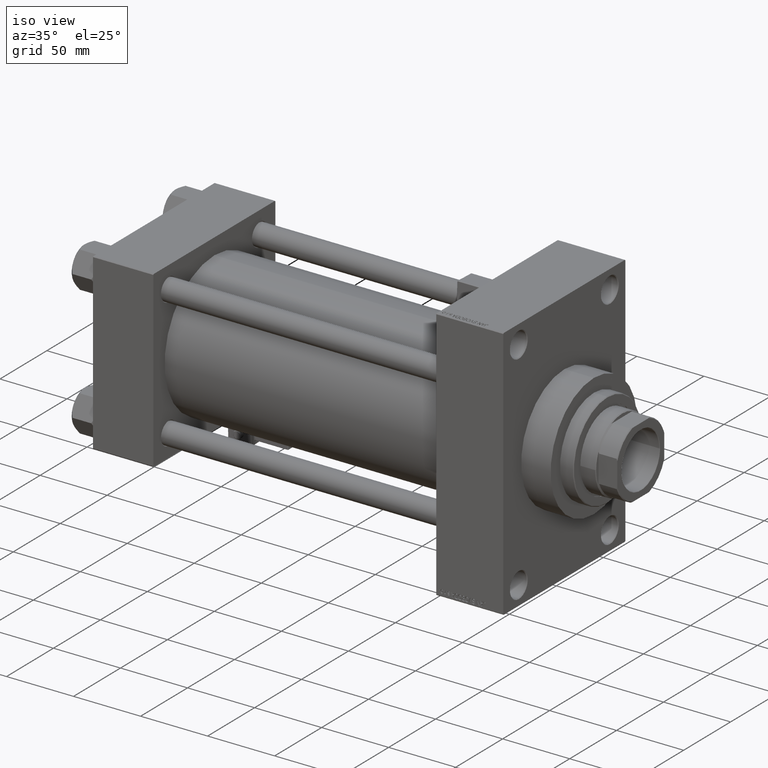
[diagram: clean part render]
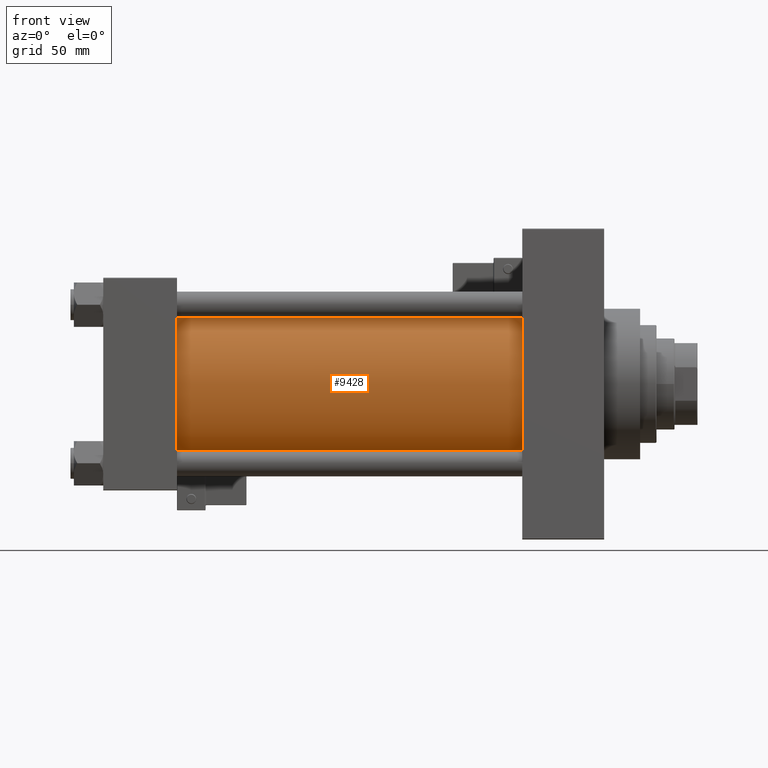
[diagram: tour spotlight — one face highlighted and labeled with its STEP entity id]
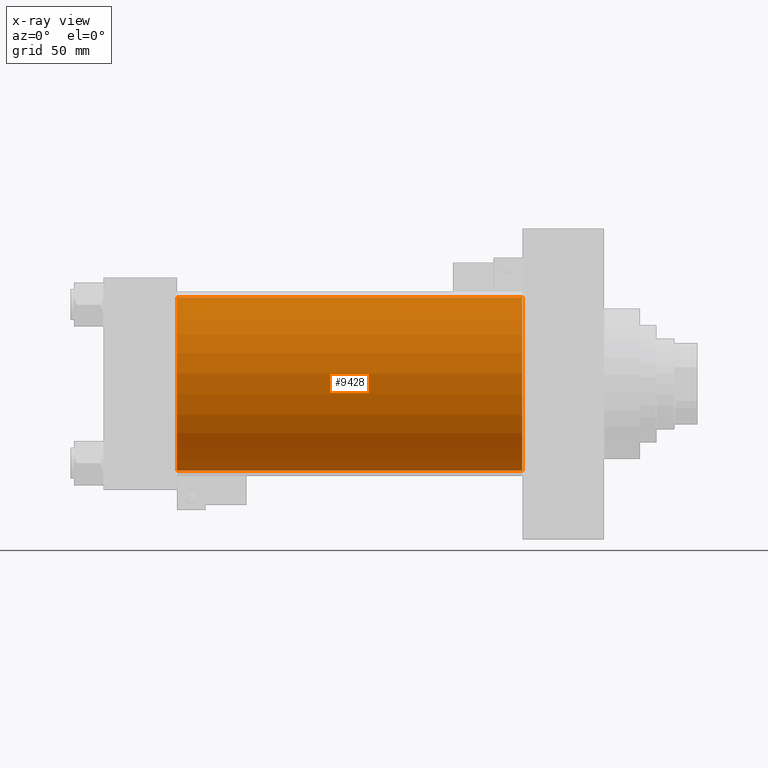
[diagram: x-ray of the same camera — body ghosted, this tour face saturated]
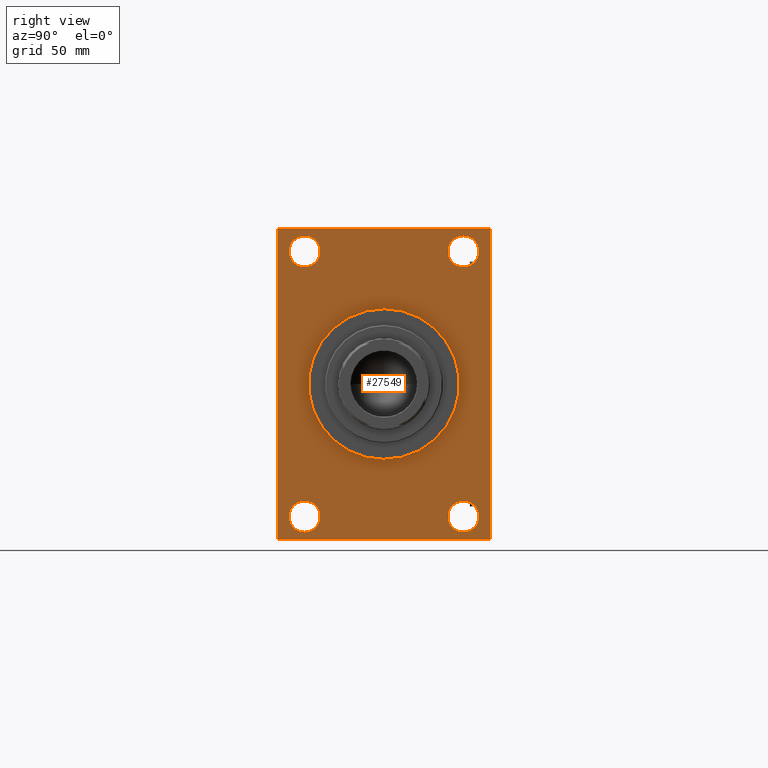
[diagram: tour spotlight — one face highlighted and labeled with its STEP entity id]
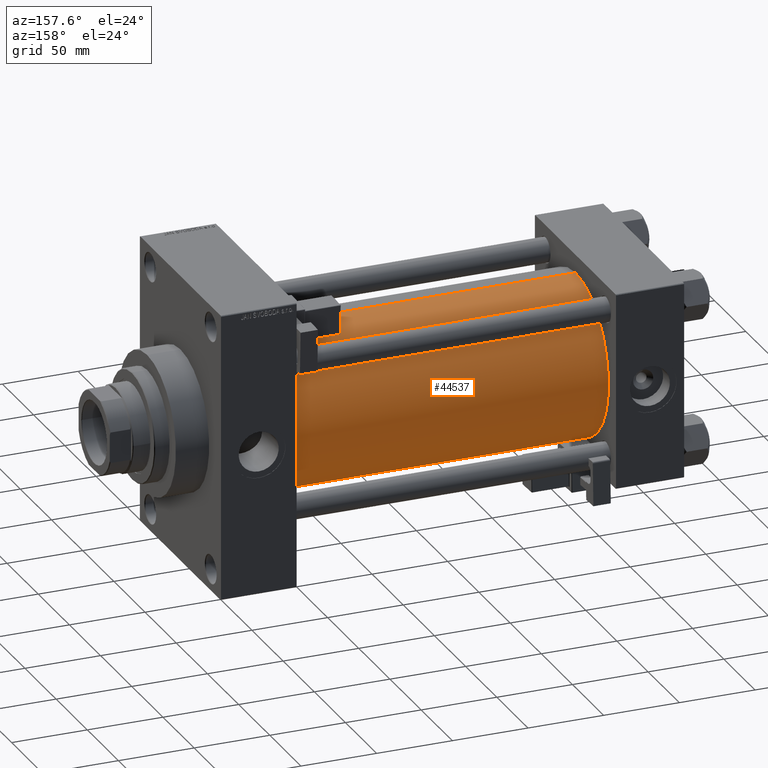
[diagram: tour spotlight — one face highlighted and labeled with its STEP entity id]
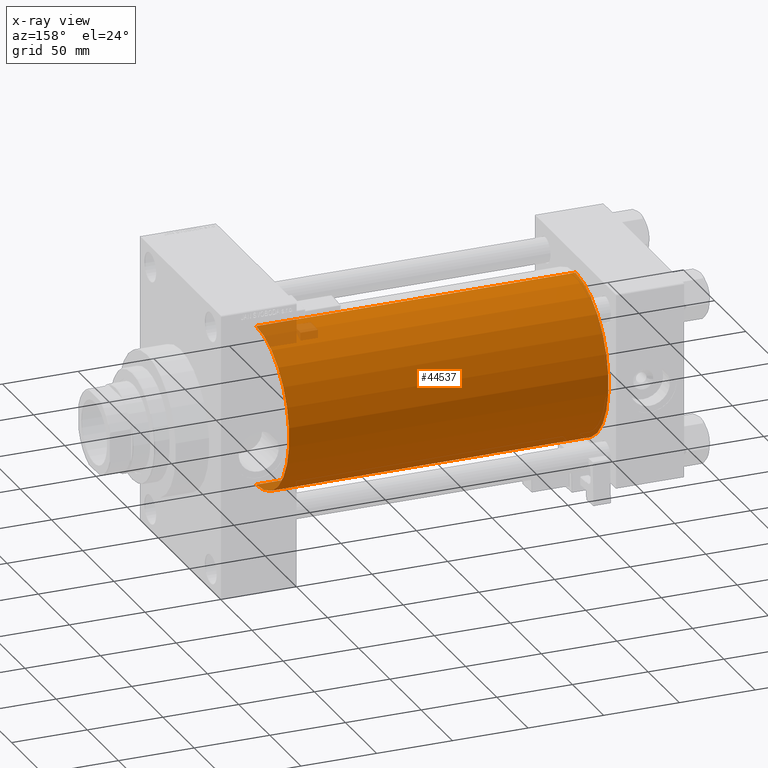
[diagram: x-ray of the same camera — body ghosted, this tour face saturated]
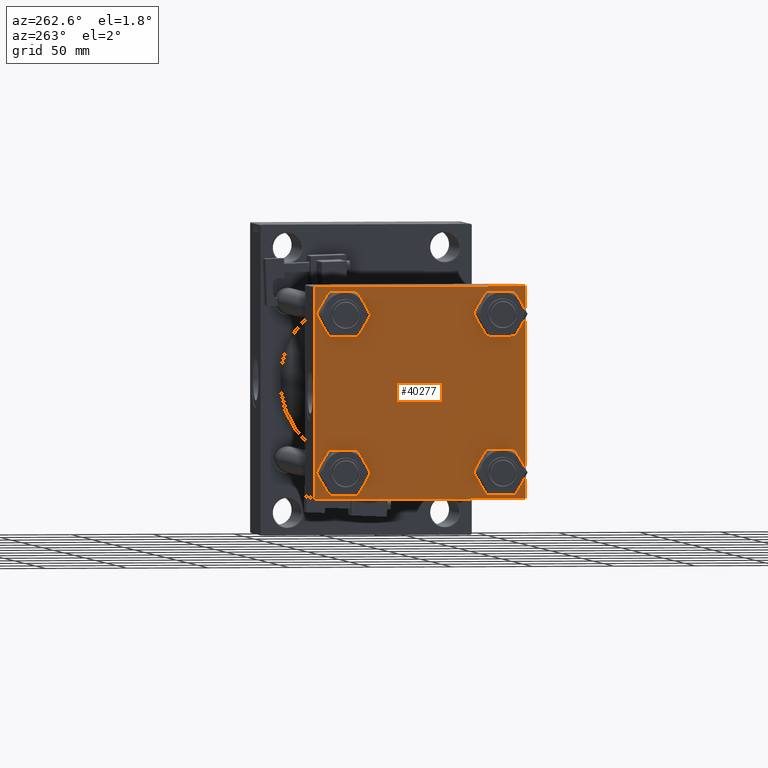
[diagram: tour spotlight — one face highlighted and labeled with its STEP entity id]
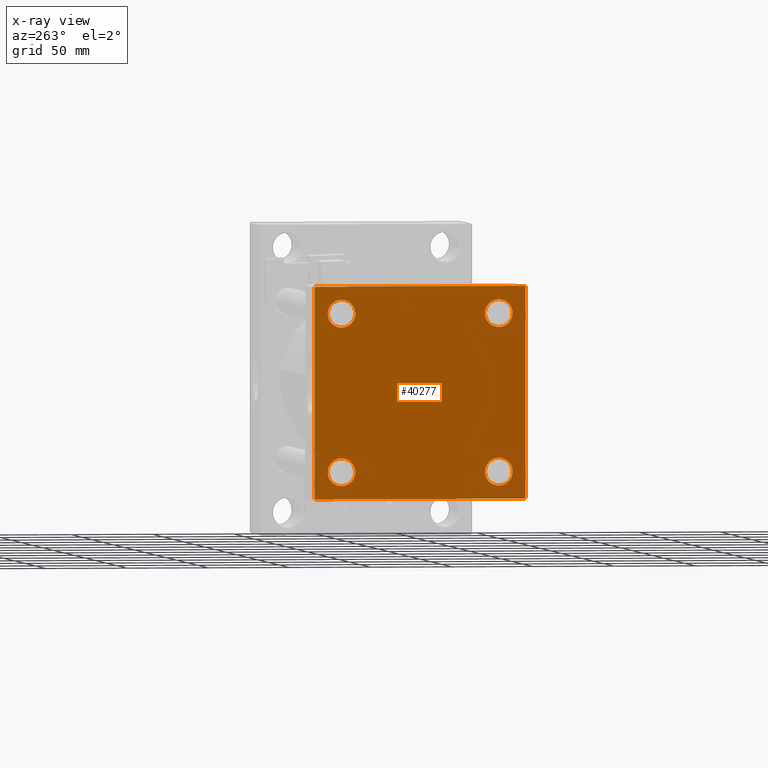
[diagram: x-ray of the same camera — body ghosted, this tour face saturated]
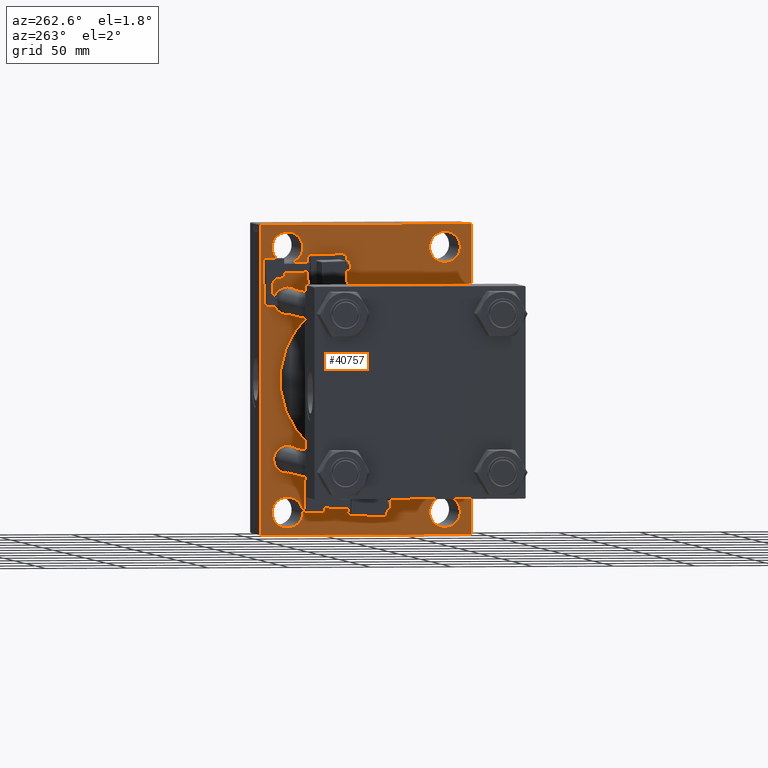
[diagram: tour spotlight — one face highlighted and labeled with its STEP entity id]
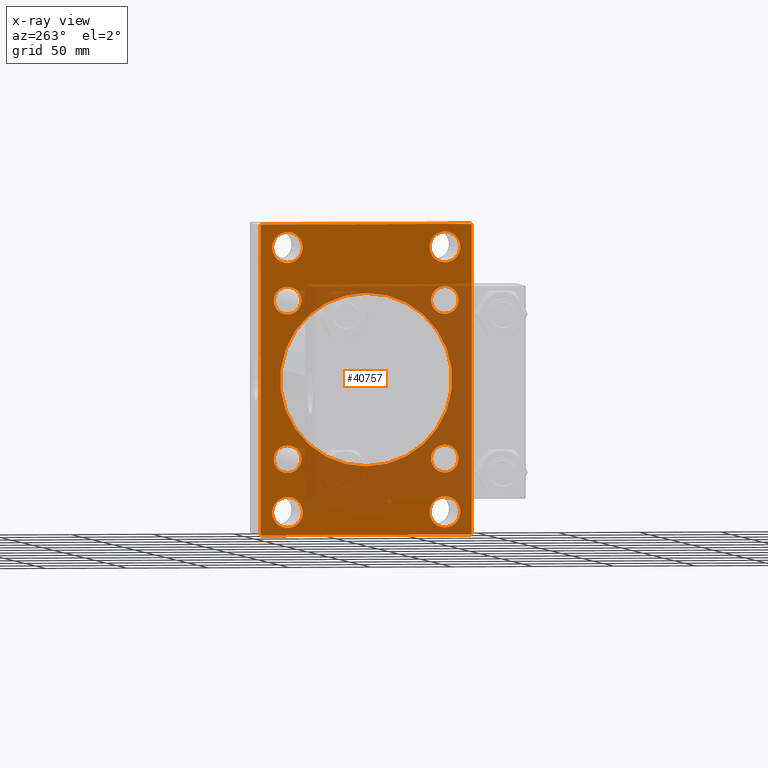
[diagram: x-ray of the same camera — body ghosted, this tour face saturated]
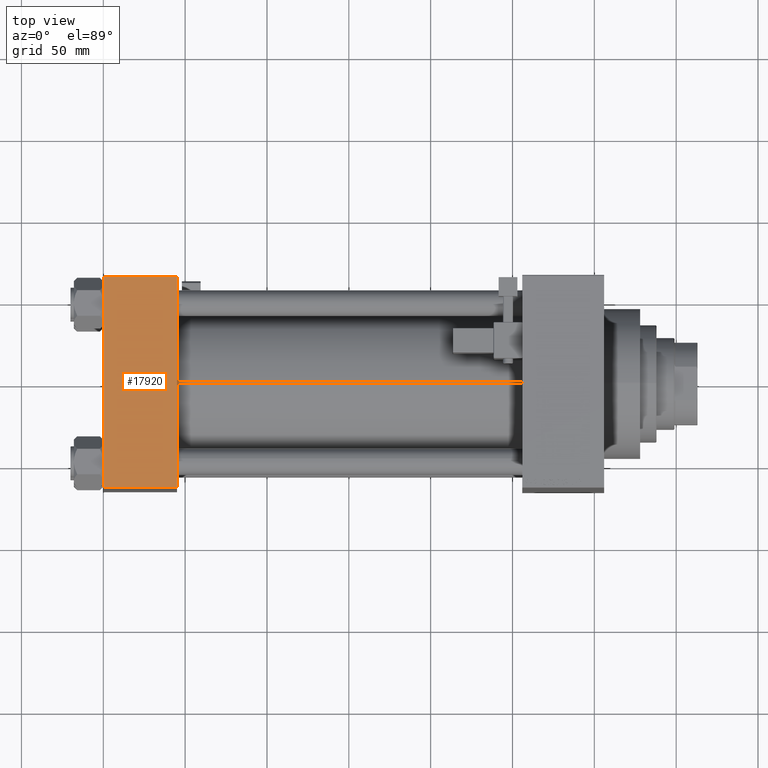
[diagram: tour spotlight — one face highlighted and labeled with its STEP entity id]
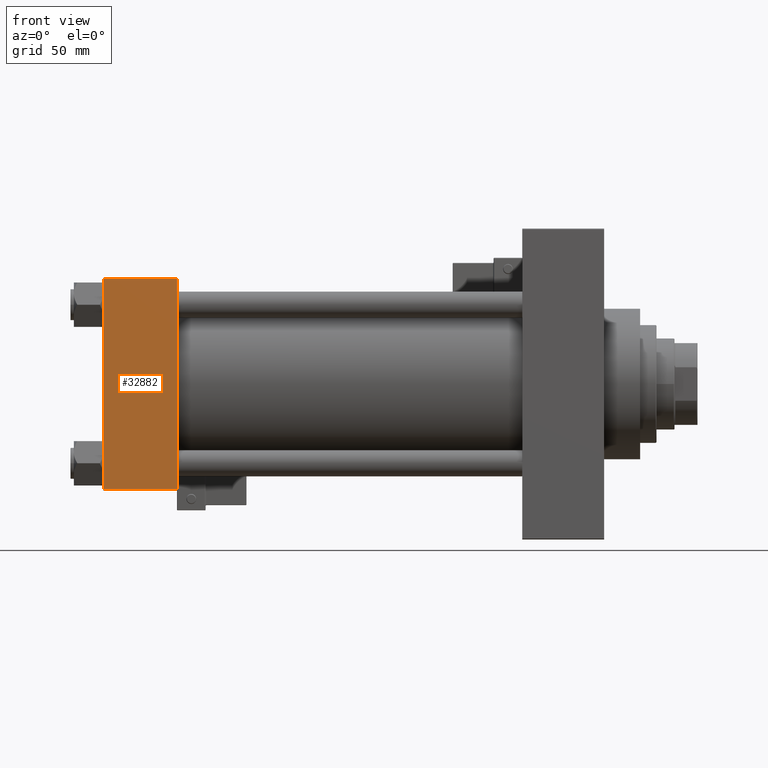
[diagram: tour spotlight — one face highlighted and labeled with its STEP entity id]
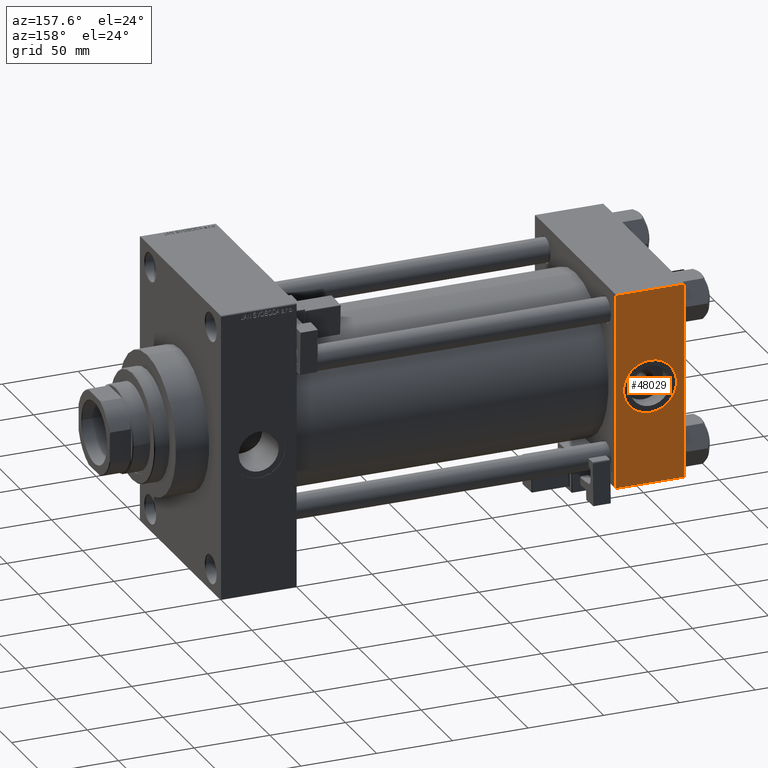
[diagram: tour spotlight — one face highlighted and labeled with its STEP entity id]
A machine part: a face-by-face anatomy tour. The part has 1306 B-rep faces; the first image is the clean iso view, then the 8 largest visible faces are spotlighted one at a time (largest first), each with its STEP entity span.

Face 1 — front view, entity #9428. An x-ray twin of the same camera follows (body ghosted, this face saturated) — the face is partly hidden behind the body. In plain terms, the highlighted cylindrical surface (partial cylindrical patch) has radius 53 mm, axis along (-1, -0, -0).
Definition (entity closure, byte-faithful):
#1473 = DIRECTION ( 'NONE',  ( -1.000000000000000000, -0.000000000000000000, -0.000000000000000000 ) ) ;
#4397 = EDGE_CURVE ( 'NONE', #42078, #6152, #44284, .T. ) ;
#4715 = VECTOR ( 'NONE', #1473, 1000.000000000000000 ) ;
#6152 = VERTEX_POINT ( 'NONE', #34834 ) ;
#6982 = DIRECTION ( 'NONE',  ( 0.000000000000000000, 0.000000000000000000, -1.000000000000000000 ) ) ;
#8517 = CARTESIAN_POINT ( 'NONE',  ( 256.0000000000000000, -2.602085213965210642E-15, 0.000000000000000000 ) ) ;
#8550 = ORIENTED_EDGE ( 'NONE', *, *, #45533, .F. ) ;
#9428 = ADVANCED_FACE ( 'NONE', ( #24200 ), #31274, .T. ) ;
#9566 = LINE ( 'NONE', #13360, #4715 ) ;
#11958 = AXIS2_PLACEMENT_3D ( 'NONE', #26213, #41610, #6982 ) ;
#13360 = CARTESIAN_POINT ( 'NONE',  ( 256.0000000000000000, -2.602085213965210642E-15, 53.00000000000000711 ) ) ;
#15004 = VERTEX_POINT ( 'NONE', #36362 ) ;
#15021 = EDGE_CURVE ( 'NONE', #15004, #42078, #9566, .T. ) ;
#15075 = VECTOR ( 'NONE', #38859, 1000.000000000000000 ) ;
#18536 = AXIS2_PLACEMENT_3D ( 'NONE', #8517, #20403, #19899 ) ;
#19899 = DIRECTION ( 'NONE',  ( 0.000000000000000000, 0.000000000000000000, 1.000000000000000000 ) ) ;
#20403 = DIRECTION ( 'NONE',  ( -1.000000000000000000, -0.000000000000000000, -0.000000000000000000 ) ) ;
#22828 = ORIENTED_EDGE ( 'NONE', *, *, #43105, .F. ) ;
#24200 = FACE_OUTER_BOUND ( 'NONE', #30547, .T. ) ;
#26213 = CARTESIAN_POINT ( 'NONE',  ( 256.0000000000000000, -2.602085213965210642E-15, 0.000000000000000000 ) ) ;
#27178 = ORIENTED_EDGE ( 'NONE', *, *, #15021, .T. ) ;
#27496 = LINE ( 'NONE', #43371, #15075 ) ;
#28680 = CARTESIAN_POINT ( 'NONE',  ( 44.99999999999998579, -2.602085213965210642E-15, 0.000000000000000000 ) ) ;
#30547 = EDGE_LOOP ( 'NONE', ( #22828, #8550, #27178, #38187 ) ) ;
#30706 = CARTESIAN_POINT ( 'NONE',  ( 44.99999999999998579, -2.602085213965210642E-15, 53.00000000000000711 ) ) ;
#31274 = CYLINDRICAL_SURFACE ( 'NONE', #18536, 53.00000000000000711 ) ;
#32236 = AXIS2_PLACEMENT_3D ( 'NONE', #28680, #39803, #40047 ) ;
#34834 = CARTESIAN_POINT ( 'NONE',  ( 44.99999999999998579, 3.888542821515762466E-15, -53.00000000000000711 ) ) ;
#36362 = CARTESIAN_POINT ( 'NONE',  ( 256.0000000000000000, -2.602085213965210642E-15, 53.00000000000000711 ) ) ;
#38187 = ORIENTED_EDGE ( 'NONE', *, *, #4397, .T. ) ;
#38859 = DIRECTION ( 'NONE',  ( -1.000000000000000000, -0.000000000000000000, -0.000000000000000000 ) ) ;
#39803 = DIRECTION ( 'NONE',  ( 1.000000000000000000, -0.000000000000000000, 0.000000000000000000 ) ) ;
#40047 = DIRECTION ( 'NONE',  ( 0.000000000000000000, 0.000000000000000000, 1.000000000000000000 ) ) ;
#41358 = VERTEX_POINT ( 'NONE', #45765 ) ;
#41610 = DIRECTION ( 'NONE',  ( 1.000000000000000000, 0.000000000000000000, 0.000000000000000000 ) ) ;
#42078 = VERTEX_POINT ( 'NONE', #30706 ) ;
#43105 = EDGE_CURVE ( 'NONE', #41358, #6152, #27496, .T. ) ;
#43371 = CARTESIAN_POINT ( 'NONE',  ( 256.0000000000000000, 3.888542821515762466E-15, -53.00000000000000711 ) ) ;
#44284 = CIRCLE ( 'NONE', #32236, 53.00000000000000711 ) ;
#45533 = EDGE_CURVE ( 'NONE', #15004, #41358, #45796, .T. ) ;
#45765 = CARTESIAN_POINT ( 'NONE',  ( 256.0000000000000000, 3.888542821515762466E-15, -53.00000000000000711 ) ) ;
#45796 = CIRCLE ( 'NONE', #11958, 53.00000000000000711 ) ;

Face 2 — right view, entity #27549. In plain terms, the highlighted planar face has unit normal (-1, 0, 0).
Definition (entity closure, byte-faithful):
#92 = DIRECTION ( 'NONE',  ( -0.000000000000000000, -0.7071067811864985009, -0.7071067811865965336 ) ) ;
#452 = DIRECTION ( 'NONE',  ( -1.000000000000000000, 0.000000000000000000, -0.000000000000000000 ) ) ;
#977 = DIRECTION ( 'NONE',  ( -0.000000000000000000, 0.000000000000000000, 1.000000000000000000 ) ) ;
#1416 = VERTEX_POINT ( 'NONE', #30741 ) ;
#3084 = CARTESIAN_POINT ( 'NONE',  ( 306.0000000000000000, -48.50000000000000000, 81.00000000000000000 ) ) ;
#3573 = LINE ( 'NONE', #19517, #18396 ) ;
#4002 = DIRECTION ( 'NONE',  ( 0.000000000000000000, 0.000000000000000000, 1.000000000000000000 ) ) ;
#4060 = ORIENTED_EDGE ( 'NONE', *, *, #17019, .T. ) ;
#4263 = FACE_OUTER_BOUND ( 'NONE', #46239, .T. ) ;
#4285 = DIRECTION ( 'NONE',  ( 0.000000000000000000, 0.000000000000000000, 1.000000000000000000 ) ) ;
#4287 = CARTESIAN_POINT ( 'NONE',  ( 306.0000000000000000, 64.49999999999997158, 94.99999999999997158 ) ) ;
#4624 = LINE ( 'NONE', #31937, #11915 ) ;
#5002 = DIRECTION ( 'NONE',  ( -1.000000000000000000, 0.000000000000000000, -0.000000000000000000 ) ) ;
#5071 = CARTESIAN_POINT ( 'NONE',  ( 306.0000000000000000, 0.000000000000000000, 0.000000000000000000 ) ) ;
#5354 = VERTEX_POINT ( 'NONE', #12091 ) ;
#5711 = CARTESIAN_POINT ( 'NONE',  ( 306.0000000000000000, -48.50000000000000000, 71.49999999999994316 ) ) ;
#5804 = ORIENTED_EDGE ( 'NONE', *, *, #27028, .T. ) ;
#5847 = ORIENTED_EDGE ( 'NONE', *, *, #18855, .T. ) ;
#5974 = LINE ( 'NONE', #25938, #16170 ) ;
#6126 = CARTESIAN_POINT ( 'NONE',  ( 306.0000000000000000, 48.50000000000000711, -71.49999999999990052 ) ) ;
#6164 = CARTESIAN_POINT ( 'NONE',  ( 306.0000000000000000, 5.633375276077824704E-15, -46.00000000000000000 ) ) ;
#6456 = EDGE_CURVE ( 'NONE', #35075, #28066, #41950, .T. ) ;
#6630 = DIRECTION ( 'NONE',  ( -1.000000000000000000, 0.000000000000000000, -0.000000000000000000 ) ) ;
#6691 = VERTEX_POINT ( 'NONE', #6164 ) ;
#6788 = CARTESIAN_POINT ( 'NONE',  ( 306.0000000000000000, -48.50000000000000000, 90.50000000000007105 ) ) ;
#6928 = VERTEX_POINT ( 'NONE', #29928 ) ;
#7082 = CIRCLE ( 'NONE', #39401, 9.500000000000119016 ) ;
#7234 = VECTOR ( 'NONE', #27863, 1000.000000000000000 ) ;
#7313 = EDGE_LOOP ( 'NONE', ( #29908, #49770 ) ) ;
#7474 = CARTESIAN_POINT ( 'NONE',  ( 306.0000000000000000, 48.50000000000000711, -81.00000000000001421 ) ) ;
#8138 = DIRECTION ( 'NONE',  ( 0.000000000000000000, 0.000000000000000000, 1.000000000000000000 ) ) ;
#8267 = CARTESIAN_POINT ( 'NONE',  ( 306.0000000000000000, 48.50000000000000711, 71.49999999999994316 ) ) ;
#8298 = CARTESIAN_POINT ( 'NONE',  ( 306.0000000000000000, -48.49999999999999289, -81.00000000000001421 ) ) ;
#8561 = FACE_BOUND ( 'NONE', #30032, .T. ) ;
#8630 = DIRECTION ( 'NONE',  ( -1.000000000000000000, 0.000000000000000000, -0.000000000000000000 ) ) ;
#8932 = DIRECTION ( 'NONE',  ( -0.000000000000000000, 0.7071067811865573427, 0.7071067811865378028 ) ) ;
#9221 = VERTEX_POINT ( 'NONE', #27804 ) ;
#9728 = VERTEX_POINT ( 'NONE', #47283 ) ;
#10056 = EDGE_CURVE ( 'NONE', #5354, #9728, #31852, .T. ) ;
#10211 = EDGE_CURVE ( 'NONE', #5354, #14023, #33813, .T. ) ;
#11118 = CARTESIAN_POINT ( 'NONE',  ( 306.0000000000000000, -48.49999999999999289, -81.00000000000001421 ) ) ;
#11793 = CARTESIAN_POINT ( 'NONE',  ( 306.0000000000000000, 48.50000000000000711, -81.00000000000001421 ) ) ;
#11915 = VECTOR ( 'NONE', #8932, 1000.000000000000000 ) ;
#12091 = CARTESIAN_POINT ( 'NONE',  ( 306.0000000000000000, 64.99999999999997158, 94.50000000000002842 ) ) ;
#12173 = CIRCLE ( 'NONE', #46842, 9.500000000000063949 ) ;
#12684 = LINE ( 'NONE', #12941, #7234 ) ;
#12941 = CARTESIAN_POINT ( 'NONE',  ( 306.0000000000000000, -65.00000000000001421, 94.99999999999997158 ) ) ;
#13878 = ORIENTED_EDGE ( 'NONE', *, *, #41470, .T. ) ;
#14023 = VERTEX_POINT ( 'NONE', #43416 ) ;
#14314 = AXIS2_PLACEMENT_3D ( 'NONE', #8298, #452, #4002 ) ;
#15002 = AXIS2_PLACEMENT_3D ( 'NONE', #16222, #8630, #8138 ) ;
#15361 = DIRECTION ( 'NONE',  ( 0.000000000000000000, 7.304098846218135653E-17, -1.000000000000000000 ) ) ;
#15366 = VECTOR ( 'NONE', #35131, 1000.000000000000000 ) ;
#15845 = CARTESIAN_POINT ( 'NONE',  ( 306.0000000000000000, 64.49999999999998579, -95.00000000000001421 ) ) ;
#16077 = VERTEX_POINT ( 'NONE', #23699 ) ;
#16170 = VECTOR ( 'NONE', #21406, 1000.000000000000000 ) ;
#16190 = EDGE_LOOP ( 'NONE', ( #40379, #39928 ) ) ;
#16222 = CARTESIAN_POINT ( 'NONE',  ( 306.0000000000000000, -48.50000000000000000, 81.00000000000000000 ) ) ;
#17019 = EDGE_CURVE ( 'NONE', #29506, #19085, #49848, .T. ) ;
#17029 = AXIS2_PLACEMENT_3D ( 'NONE', #45414, #41386, #18392 ) ;
#17131 = ORIENTED_EDGE ( 'NONE', *, *, #21877, .F. ) ;
#17488 = CARTESIAN_POINT ( 'NONE',  ( 306.0000000000000000, -64.50000000000001421, -95.00000000000002842 ) ) ;
#18392 = DIRECTION ( 'NONE',  ( 0.000000000000000000, 0.000000000000000000, -1.000000000000000000 ) ) ;
#18396 = VECTOR ( 'NONE', #42241, 1000.000000000000000 ) ;
#18477 = ORIENTED_EDGE ( 'NONE', *, *, #10056, .T. ) ;
#18483 = DIRECTION ( 'NONE',  ( -1.000000000000000000, 0.000000000000000000, -0.000000000000000000 ) ) ;
#18656 = EDGE_LOOP ( 'NONE', ( #5804, #13878 ) ) ;
#18739 = CARTESIAN_POINT ( 'NONE',  ( 306.0000000000000000, 48.50000000000000711, 81.00000000000000000 ) ) ;
#18855 = EDGE_CURVE ( 'NONE', #19085, #9221, #12684, .T. ) ;
#19057 = CARTESIAN_POINT ( 'NONE',  ( 306.0000000000000000, -65.00000000000001421, 94.49999999999997158 ) ) ;
#19085 = VERTEX_POINT ( 'NONE', #26543 ) ;
#19179 = ORIENTED_EDGE ( 'NONE', *, *, #32766, .F. ) ;
#19248 = DIRECTION ( 'NONE',  ( 0.000000000000000000, 0.000000000000000000, 1.000000000000000000 ) ) ;
#19517 = CARTESIAN_POINT ( 'NONE',  ( 306.0000000000000000, 64.99999999999998579, -95.00000000000001421 ) ) ;
#19678 = EDGE_CURVE ( 'NONE', #9728, #29506, #5974, .T. ) ;
#19721 = CARTESIAN_POINT ( 'NONE',  ( 306.0000000000000000, 48.50000000000000711, -90.50000000000014211 ) ) ;
#19767 = CARTESIAN_POINT ( 'NONE',  ( 306.0000000000000000, -64.50000000000001421, -95.00000000000002842 ) ) ;
#19977 = ORIENTED_EDGE ( 'NONE', *, *, #10211, .F. ) ;
#20502 = DIRECTION ( 'NONE',  ( 0.000000000000000000, 0.000000000000000000, -1.000000000000000000 ) ) ;
#20551 = EDGE_CURVE ( 'NONE', #41261, #16077, #25897, .T. ) ;
#21091 = EDGE_CURVE ( 'NONE', #16077, #41261, #12173, .T. ) ;
#21406 = DIRECTION ( 'NONE',  ( 0.000000000000000000, -1.000000000000000000, 0.000000000000000000 ) ) ;
#21420 = CIRCLE ( 'NONE', #27092, 9.500000000000119016 ) ;
#21877 = EDGE_CURVE ( 'NONE', #48995, #6691, #33974, .T. ) ;
#23176 = DIRECTION ( 'NONE',  ( -1.000000000000000000, 0.000000000000000000, -0.000000000000000000 ) ) ;
#23497 = DIRECTION ( 'NONE',  ( -1.000000000000000000, 0.000000000000000000, -0.000000000000000000 ) ) ;
#23699 = CARTESIAN_POINT ( 'NONE',  ( 306.0000000000000000, 48.50000000000000711, 90.50000000000007105 ) ) ;
#25288 = CIRCLE ( 'NONE', #46257, 9.500000000000063949 ) ;
#25897 = CIRCLE ( 'NONE', #33160, 9.500000000000063949 ) ;
#25938 = CARTESIAN_POINT ( 'NONE',  ( 306.0000000000000000, 64.99999999999997158, 94.99999999999997158 ) ) ;
#26543 = CARTESIAN_POINT ( 'NONE',  ( 306.0000000000000000, -65.00000000000001421, 94.49999999999997158 ) ) ;
#27028 = EDGE_CURVE ( 'NONE', #28855, #49602, #25288, .T. ) ;
#27092 = AXIS2_PLACEMENT_3D ( 'NONE', #11118, #31342, #4285 ) ;
#27549 = ADVANCED_FACE ( 'NONE', ( #27787, #31825, #43672, #43413, #8561, #4263 ), #47444, .F. ) ;
#27787 = FACE_BOUND ( 'NONE', #18656, .T. ) ;
#27804 = CARTESIAN_POINT ( 'NONE',  ( 306.0000000000000000, -65.00000000000001421, -94.50000000000008527 ) ) ;
#27820 = AXIS2_PLACEMENT_3D ( 'NONE', #5071, #36404, #20502 ) ;
#27863 = DIRECTION ( 'NONE',  ( 0.000000000000000000, 0.000000000000000000, -1.000000000000000000 ) ) ;
#28066 = VERTEX_POINT ( 'NONE', #6126 ) ;
#28855 = VERTEX_POINT ( 'NONE', #5711 ) ;
#29333 = AXIS2_PLACEMENT_3D ( 'NONE', #35614, #23497, #977 ) ;
#29506 = VERTEX_POINT ( 'NONE', #30271 ) ;
#29871 = DIRECTION ( 'NONE',  ( 0.000000000000000000, 0.7071067811865868746, -0.7071067811865081598 ) ) ;
#29908 = ORIENTED_EDGE ( 'NONE', *, *, #35064, .T. ) ;
#29928 = CARTESIAN_POINT ( 'NONE',  ( 306.0000000000000000, -48.49999999999999289, -90.50000000000014211 ) ) ;
#29989 = DIRECTION ( 'NONE',  ( -1.000000000000000000, 0.000000000000000000, -0.000000000000000000 ) ) ;
#30032 = EDGE_LOOP ( 'NONE', ( #17131, #19179 ) ) ;
#30271 = CARTESIAN_POINT ( 'NONE',  ( 306.0000000000000000, -64.50000000000008527, 94.99999999999997158 ) ) ;
#30741 = CARTESIAN_POINT ( 'NONE',  ( 306.0000000000000000, -48.49999999999999289, -71.49999999999990052 ) ) ;
#30892 = ORIENTED_EDGE ( 'NONE', *, *, #19678, .T. ) ;
#31342 = DIRECTION ( 'NONE',  ( -1.000000000000000000, 0.000000000000000000, -0.000000000000000000 ) ) ;
#31667 = VERTEX_POINT ( 'NONE', #19767 ) ;
#31825 = FACE_BOUND ( 'NONE', #7313, .T. ) ;
#31852 = LINE ( 'NONE', #4287, #15366 ) ;
#31937 = CARTESIAN_POINT ( 'NONE',  ( 306.0000000000000000, 64.99999999999998579, -94.50000000000002842 ) ) ;
#32045 = DIRECTION ( 'NONE',  ( 0.000000000000000000, 0.000000000000000000, 1.000000000000000000 ) ) ;
#32766 = EDGE_CURVE ( 'NONE', #6691, #48995, #49549, .T. ) ;
#33160 = AXIS2_PLACEMENT_3D ( 'NONE', #46936, #5002, #32045 ) ;
#33813 = LINE ( 'NONE', #42142, #34707 ) ;
#33823 = VECTOR ( 'NONE', #92, 1000.000000000000114 ) ;
#33974 = CIRCLE ( 'NONE', #17029, 46.00000000000000000 ) ;
#34027 = DIRECTION ( 'NONE',  ( 0.000000000000000000, 0.000000000000000000, 1.000000000000000000 ) ) ;
#34707 = VECTOR ( 'NONE', #15361, 1000.000000000000000 ) ;
#35064 = EDGE_CURVE ( 'NONE', #6928, #1416, #21420, .T. ) ;
#35075 = VERTEX_POINT ( 'NONE', #19721 ) ;
#35131 = DIRECTION ( 'NONE',  ( 0.000000000000000000, -0.7071067811865868746, 0.7071067811865081598 ) ) ;
#35192 = CIRCLE ( 'NONE', #15002, 9.500000000000063949 ) ;
#35614 = CARTESIAN_POINT ( 'NONE',  ( 306.0000000000000000, 0.000000000000000000, 0.000000000000000000 ) ) ;
#36404 = DIRECTION ( 'NONE',  ( 1.000000000000000000, 0.000000000000000000, 0.000000000000000000 ) ) ;
#37015 = CARTESIAN_POINT ( 'NONE',  ( 306.0000000000000000, 0.000000000000000000, 46.00000000000000000 ) ) ;
#37435 = LINE ( 'NONE', #17488, #39367 ) ;
#37849 = ORIENTED_EDGE ( 'NONE', *, *, #48158, .T. ) ;
#38260 = EDGE_CURVE ( 'NONE', #28066, #35075, #7082, .T. ) ;
#38604 = ORIENTED_EDGE ( 'NONE', *, *, #6456, .T. ) ;
#39333 = CIRCLE ( 'NONE', #14314, 9.500000000000119016 ) ;
#39367 = VECTOR ( 'NONE', #29871, 1000.000000000000000 ) ;
#39401 = AXIS2_PLACEMENT_3D ( 'NONE', #11793, #23176, #46894 ) ;
#39928 = ORIENTED_EDGE ( 'NONE', *, *, #21091, .T. ) ;
#40379 = ORIENTED_EDGE ( 'NONE', *, *, #20551, .T. ) ;
#41261 = VERTEX_POINT ( 'NONE', #8267 ) ;
#41386 = DIRECTION ( 'NONE',  ( 1.000000000000000000, 0.000000000000000000, 0.000000000000000000 ) ) ;
#41470 = EDGE_CURVE ( 'NONE', #49602, #28855, #35192, .T. ) ;
#41950 = CIRCLE ( 'NONE', #43578, 9.500000000000119016 ) ;
#42142 = CARTESIAN_POINT ( 'NONE',  ( 306.0000000000000000, 64.99999999999997158, 94.99999999999997158 ) ) ;
#42241 = DIRECTION ( 'NONE',  ( 0.000000000000000000, -1.000000000000000000, -1.067522139062650425E-16 ) ) ;
#43150 = VERTEX_POINT ( 'NONE', #15845 ) ;
#43413 = FACE_BOUND ( 'NONE', #16190, .T. ) ;
#43416 = CARTESIAN_POINT ( 'NONE',  ( 306.0000000000000000, 64.99999999999998579, -94.50000000000002842 ) ) ;
#43514 = ORIENTED_EDGE ( 'NONE', *, *, #48090, .T. ) ;
#43578 = AXIS2_PLACEMENT_3D ( 'NONE', #7474, #29989, #34027 ) ;
#43672 = FACE_BOUND ( 'NONE', #46003, .T. ) ;
#45414 = CARTESIAN_POINT ( 'NONE',  ( 306.0000000000000000, 0.000000000000000000, 0.000000000000000000 ) ) ;
#45805 = ORIENTED_EDGE ( 'NONE', *, *, #38260, .T. ) ;
#46003 = EDGE_LOOP ( 'NONE', ( #38604, #45805 ) ) ;
#46057 = ORIENTED_EDGE ( 'NONE', *, *, #49289, .F. ) ;
#46239 = EDGE_LOOP ( 'NONE', ( #5847, #37849, #46057, #43514, #19977, #18477, #30892, #4060 ) ) ;
#46257 = AXIS2_PLACEMENT_3D ( 'NONE', #3084, #6630, #48336 ) ;
#46842 = AXIS2_PLACEMENT_3D ( 'NONE', #18739, #18483, #19248 ) ;
#46894 = DIRECTION ( 'NONE',  ( 0.000000000000000000, 0.000000000000000000, 1.000000000000000000 ) ) ;
#46936 = CARTESIAN_POINT ( 'NONE',  ( 306.0000000000000000, 48.50000000000000711, 81.00000000000000000 ) ) ;
#47283 = CARTESIAN_POINT ( 'NONE',  ( 306.0000000000000000, 64.49999999999997158, 94.99999999999997158 ) ) ;
#47300 = EDGE_CURVE ( 'NONE', #1416, #6928, #39333, .T. ) ;
#47444 = PLANE ( 'NONE',  #29333 ) ;
#48090 = EDGE_CURVE ( 'NONE', #43150, #14023, #4624, .T. ) ;
#48158 = EDGE_CURVE ( 'NONE', #9221, #31667, #37435, .T. ) ;
#48336 = DIRECTION ( 'NONE',  ( 0.000000000000000000, 0.000000000000000000, 1.000000000000000000 ) ) ;
#48995 = VERTEX_POINT ( 'NONE', #37015 ) ;
#49289 = EDGE_CURVE ( 'NONE', #43150, #31667, #3573, .T. ) ;
#49549 = CIRCLE ( 'NONE', #27820, 46.00000000000000000 ) ;
#49602 = VERTEX_POINT ( 'NONE', #6788 ) ;
#49770 = ORIENTED_EDGE ( 'NONE', *, *, #47300, .T. ) ;
#49848 = LINE ( 'NONE', #19057, #33823 ) ;

Face 3 — auxiliary view, entity #44537. An x-ray twin of the same camera follows (body ghosted, this face saturated) — the face is partly hidden behind the body. In plain terms, the highlighted cylindrical surface (partial cylindrical patch) has radius 53 mm, axis along (-1, -0, -0).
Definition (entity closure, byte-faithful):
#99 = CARTESIAN_POINT ( 'NONE',  ( 256.0000000000000000, -2.602085213965210642E-15, 0.000000000000000000 ) ) ;
#1128 = ORIENTED_EDGE ( 'NONE', *, *, #9368, .F. ) ;
#1473 = DIRECTION ( 'NONE',  ( -1.000000000000000000, -0.000000000000000000, -0.000000000000000000 ) ) ;
#3882 = DIRECTION ( 'NONE',  ( -1.000000000000000000, -0.000000000000000000, -0.000000000000000000 ) ) ;
#4715 = VECTOR ( 'NONE', #1473, 1000.000000000000000 ) ;
#5332 = CARTESIAN_POINT ( 'NONE',  ( 44.99999999999998579, -2.602085213965210642E-15, 0.000000000000000000 ) ) ;
#5623 = AXIS2_PLACEMENT_3D ( 'NONE', #45407, #29775, #41379 ) ;
#6152 = VERTEX_POINT ( 'NONE', #34834 ) ;
#7680 = ORIENTED_EDGE ( 'NONE', *, *, #43105, .T. ) ;
#7931 = DIRECTION ( 'NONE',  ( 0.000000000000000000, 0.000000000000000000, 1.000000000000000000 ) ) ;
#9368 = EDGE_CURVE ( 'NONE', #41358, #15004, #27438, .T. ) ;
#9566 = LINE ( 'NONE', #13360, #4715 ) ;
#13186 = DIRECTION ( 'NONE',  ( 1.000000000000000000, -0.000000000000000000, 0.000000000000000000 ) ) ;
#13360 = CARTESIAN_POINT ( 'NONE',  ( 256.0000000000000000, -2.602085213965210642E-15, 53.00000000000000711 ) ) ;
#15004 = VERTEX_POINT ( 'NONE', #36362 ) ;
#15021 = EDGE_CURVE ( 'NONE', #15004, #42078, #9566, .T. ) ;
#15075 = VECTOR ( 'NONE', #38859, 1000.000000000000000 ) ;
#15110 = AXIS2_PLACEMENT_3D ( 'NONE', #99, #3882, #7931 ) ;
#22953 = EDGE_LOOP ( 'NONE', ( #1128, #7680, #32949, #34244 ) ) ;
#24065 = DIRECTION ( 'NONE',  ( 0.000000000000000000, 0.000000000000000000, 1.000000000000000000 ) ) ;
#26342 = EDGE_CURVE ( 'NONE', #6152, #42078, #37358, .T. ) ;
#27438 = CIRCLE ( 'NONE', #5623, 53.00000000000000711 ) ;
#27496 = LINE ( 'NONE', #43371, #15075 ) ;
#29775 = DIRECTION ( 'NONE',  ( 1.000000000000000000, 0.000000000000000000, 0.000000000000000000 ) ) ;
#30706 = CARTESIAN_POINT ( 'NONE',  ( 44.99999999999998579, -2.602085213965210642E-15, 53.00000000000000711 ) ) ;
#32949 = ORIENTED_EDGE ( 'NONE', *, *, #26342, .T. ) ;
#34244 = ORIENTED_EDGE ( 'NONE', *, *, #15021, .F. ) ;
#34834 = CARTESIAN_POINT ( 'NONE',  ( 44.99999999999998579, 3.888542821515762466E-15, -53.00000000000000711 ) ) ;
#36362 = CARTESIAN_POINT ( 'NONE',  ( 256.0000000000000000, -2.602085213965210642E-15, 53.00000000000000711 ) ) ;
#37358 = CIRCLE ( 'NONE', #44597, 53.00000000000000711 ) ;
#38776 = FACE_OUTER_BOUND ( 'NONE', #22953, .T. ) ;
#38859 = DIRECTION ( 'NONE',  ( -1.000000000000000000, -0.000000000000000000, -0.000000000000000000 ) ) ;
#41358 = VERTEX_POINT ( 'NONE', #45765 ) ;
#41379 = DIRECTION ( 'NONE',  ( 0.000000000000000000, 0.000000000000000000, -1.000000000000000000 ) ) ;
#42078 = VERTEX_POINT ( 'NONE', #30706 ) ;
#43105 = EDGE_CURVE ( 'NONE', #41358, #6152, #27496, .T. ) ;
#43371 = CARTESIAN_POINT ( 'NONE',  ( 256.0000000000000000, 3.888542821515762466E-15, -53.00000000000000711 ) ) ;
#44537 = ADVANCED_FACE ( 'NONE', ( #38776 ), #45568, .T. ) ;
#44597 = AXIS2_PLACEMENT_3D ( 'NONE', #5332, #13186, #24065 ) ;
#45407 = CARTESIAN_POINT ( 'NONE',  ( 256.0000000000000000, -2.602085213965210642E-15, 0.000000000000000000 ) ) ;
#45568 = CYLINDRICAL_SURFACE ( 'NONE', #15110, 53.00000000000000711 ) ;
#45765 = CARTESIAN_POINT ( 'NONE',  ( 256.0000000000000000, 3.888542821515762466E-15, -53.00000000000000711 ) ) ;

Face 4 — auxiliary view, entity #40277. An x-ray twin of the same camera follows (body ghosted, this face saturated) — the face is partly hidden behind the body. In plain terms, the highlighted planar face has unit normal (-1, 0, 0).
Definition (entity closure, byte-faithful):
#443 = AXIS2_PLACEMENT_3D ( 'NONE', #11032, #37564, #18116 ) ;
#1205 = CIRCLE ( 'NONE', #29499, 8.500000000000007105 ) ;
#2990 = LINE ( 'NONE', #37888, #30149 ) ;
#3192 = AXIS2_PLACEMENT_3D ( 'NONE', #14619, #38626, #37867 ) ;
#3265 = CIRCLE ( 'NONE', #26710, 8.500000000000007105 ) ;
#3304 = VERTEX_POINT ( 'NONE', #23397 ) ;
#3353 = DIRECTION ( 'NONE',  ( 0.000000000000000000, 0.000000000000000000, 1.000000000000000000 ) ) ;
#3679 = ORIENTED_EDGE ( 'NONE', *, *, #12870, .F. ) ;
#4276 = DIRECTION ( 'NONE',  ( 1.000000000000000000, -0.000000000000000000, 0.000000000000000000 ) ) ;
#4705 = DIRECTION ( 'NONE',  ( 0.000000000000000000, 0.000000000000000000, 1.000000000000000000 ) ) ;
#4944 = EDGE_CURVE ( 'NONE', #44397, #9575, #12406, .T. ) ;
#5091 = CARTESIAN_POINT ( 'NONE',  ( 0.000000000000000000, -48.44999999999999574, -48.45000000000003126 ) ) ;
#5305 = DIRECTION ( 'NONE',  ( 0.000000000000000000, 0.000000000000000000, 1.000000000000000000 ) ) ;
#5348 = VECTOR ( 'NONE', #47494, 1000.000000000000114 ) ;
#6105 = VERTEX_POINT ( 'NONE', #32904 ) ;
#6155 = EDGE_CURVE ( 'NONE', #28336, #18202, #39555, .T. ) ;
#6288 = CARTESIAN_POINT ( 'NONE',  ( 0.000000000000000000, -48.44999999999999574, -48.45000000000003126 ) ) ;
#6637 = CARTESIAN_POINT ( 'NONE',  ( 0.000000000000000000, 48.45000000000000995, 48.45000000000001705 ) ) ;
#6726 = FACE_BOUND ( 'NONE', #25615, .T. ) ;
#7100 = LINE ( 'NONE', #37950, #11215 ) ;
#7178 = CARTESIAN_POINT ( 'NONE',  ( 0.000000000000000000, 64.49999999999997158, 65.00000000000001421 ) ) ;
#7490 = EDGE_CURVE ( 'NONE', #18202, #28336, #36336, .T. ) ;
#8461 = VERTEX_POINT ( 'NONE', #21619 ) ;
#8514 = LINE ( 'NONE', #42629, #28954 ) ;
#8628 = CARTESIAN_POINT ( 'NONE',  ( 0.000000000000000000, 48.45000000000000995, -39.95000000000000284 ) ) ;
#8688 = ORIENTED_EDGE ( 'NONE', *, *, #36872, .T. ) ;
#8813 = CARTESIAN_POINT ( 'NONE',  ( 0.000000000000000000, 48.45000000000000995, 56.95000000000002416 ) ) ;
#8830 = EDGE_CURVE ( 'NONE', #45782, #3304, #30649, .T. ) ;
#8845 = VECTOR ( 'NONE', #35390, 1000.000000000000000 ) ;
#9204 = VERTEX_POINT ( 'NONE', #19212 ) ;
#9575 = VERTEX_POINT ( 'NONE', #15479 ) ;
#10139 = EDGE_LOOP ( 'NONE', ( #42320, #17850 ) ) ;
#10182 = CARTESIAN_POINT ( 'NONE',  ( 0.000000000000000000, -64.49999999999994316, -65.00000000000000000 ) ) ;
#10956 = EDGE_CURVE ( 'NONE', #21403, #27692, #3265, .T. ) ;
#11032 = CARTESIAN_POINT ( 'NONE',  ( 0.000000000000000000, 0.000000000000000000, 0.000000000000000000 ) ) ;
#11215 = VECTOR ( 'NONE', #23051, 1000.000000000000000 ) ;
#12126 = EDGE_CURVE ( 'NONE', #25024, #41216, #27326, .T. ) ;
#12314 = DIRECTION ( 'NONE',  ( 1.000000000000000000, -0.000000000000000000, 0.000000000000000000 ) ) ;
#12406 = LINE ( 'NONE', #27822, #8845 ) ;
#12870 = EDGE_CURVE ( 'NONE', #26921, #9204, #7100, .T. ) ;
#12915 = CARTESIAN_POINT ( 'NONE',  ( 0.000000000000000000, 48.45000000000000995, -48.45000000000001705 ) ) ;
#13421 = DIRECTION ( 'NONE',  ( 0.000000000000000000, -1.000000000000000000, -1.067522139062650425E-16 ) ) ;
#14066 = EDGE_CURVE ( 'NONE', #45782, #44397, #35105, .T. ) ;
#14619 = CARTESIAN_POINT ( 'NONE',  ( 0.000000000000000000, 48.45000000000000995, -48.45000000000001705 ) ) ;
#14683 = EDGE_CURVE ( 'NONE', #41216, #25024, #18382, .T. ) ;
#15274 = DIRECTION ( 'NONE',  ( 0.000000000000000000, 0.000000000000000000, 1.000000000000000000 ) ) ;
#15472 = CARTESIAN_POINT ( 'NONE',  ( 0.000000000000000000, 65.00000000000000000, 65.00000000000001421 ) ) ;
#15479 = CARTESIAN_POINT ( 'NONE',  ( 0.000000000000000000, 65.00000000000000000, -64.49999999999995737 ) ) ;
#17682 = DIRECTION ( 'NONE',  ( 1.000000000000000000, -0.000000000000000000, 0.000000000000000000 ) ) ;
#17850 = ORIENTED_EDGE ( 'NONE', *, *, #12126, .T. ) ;
#18082 = AXIS2_PLACEMENT_3D ( 'NONE', #29036, #47707, #47951 ) ;
#18116 = DIRECTION ( 'NONE',  ( -0.000000000000000000, 0.000000000000000000, 1.000000000000000000 ) ) ;
#18202 = VERTEX_POINT ( 'NONE', #8628 ) ;
#18382 = CIRCLE ( 'NONE', #46620, 8.500000000000007105 ) ;
#18767 = CARTESIAN_POINT ( 'NONE',  ( 0.000000000000000000, -48.44999999999999574, 56.95000000000003837 ) ) ;
#18956 = DIRECTION ( 'NONE',  ( 0.000000000000000000, 0.000000000000000000, 1.000000000000000000 ) ) ;
#19212 = CARTESIAN_POINT ( 'NONE',  ( 0.000000000000000000, -65.00000000000000000, -64.49999999999991473 ) ) ;
#19350 = VECTOR ( 'NONE', #38225, 1000.000000000000000 ) ;
#19443 = CARTESIAN_POINT ( 'NONE',  ( 0.000000000000000000, 48.45000000000000995, 39.95000000000000284 ) ) ;
#19647 = CARTESIAN_POINT ( 'NONE',  ( 0.000000000000000000, -48.44999999999999574, -39.95000000000001705 ) ) ;
#19888 = CARTESIAN_POINT ( 'NONE',  ( 0.000000000000000000, 48.45000000000000995, 48.45000000000001705 ) ) ;
#19912 = ORIENTED_EDGE ( 'NONE', *, *, #7490, .T. ) ;
#20992 = LINE ( 'NONE', #28814, #5348 ) ;
#21182 = ORIENTED_EDGE ( 'NONE', *, *, #34327, .T. ) ;
#21334 = CARTESIAN_POINT ( 'NONE',  ( 0.000000000000000000, -65.00000000000000000, 64.50000000000000000 ) ) ;
#21403 = VERTEX_POINT ( 'NONE', #19443 ) ;
#21602 = ORIENTED_EDGE ( 'NONE', *, *, #30858, .T. ) ;
#21619 = CARTESIAN_POINT ( 'NONE',  ( 0.000000000000000000, 64.49999999999997158, -64.99999999999998579 ) ) ;
#21674 = FACE_BOUND ( 'NONE', #43710, .T. ) ;
#22072 = DIRECTION ( 'NONE',  ( 1.000000000000000000, -0.000000000000000000, 0.000000000000000000 ) ) ;
#22162 = FACE_OUTER_BOUND ( 'NONE', #45343, .T. ) ;
#23051 = DIRECTION ( 'NONE',  ( 0.000000000000000000, 0.000000000000000000, -1.000000000000000000 ) ) ;
#23192 = DIRECTION ( 'NONE',  ( -0.000000000000000000, 0.7071067811865672237, 0.7071067811865279218 ) ) ;
#23295 = CIRCLE ( 'NONE', #35373, 8.500000000000007105 ) ;
#23397 = CARTESIAN_POINT ( 'NONE',  ( 0.000000000000000000, -64.49999999999997158, 65.00000000000000000 ) ) ;
#24537 = DIRECTION ( 'NONE',  ( 1.000000000000000000, -0.000000000000000000, 0.000000000000000000 ) ) ;
#25024 = VERTEX_POINT ( 'NONE', #49927 ) ;
#25615 = EDGE_LOOP ( 'NONE', ( #19912, #44878 ) ) ;
#26025 = CARTESIAN_POINT ( 'NONE',  ( 0.000000000000000000, 48.45000000000000995, -56.95000000000002416 ) ) ;
#26710 = AXIS2_PLACEMENT_3D ( 'NONE', #6637, #22072, #3353 ) ;
#26921 = VERTEX_POINT ( 'NONE', #21334 ) ;
#27284 = DIRECTION ( 'NONE',  ( 0.000000000000000000, 0.7071067811865474617, -0.7071067811865474617 ) ) ;
#27287 = VECTOR ( 'NONE', #27284, 1000.000000000000114 ) ;
#27326 = CIRCLE ( 'NONE', #33760, 8.500000000000007105 ) ;
#27692 = VERTEX_POINT ( 'NONE', #8813 ) ;
#27822 = CARTESIAN_POINT ( 'NONE',  ( 0.000000000000000000, 65.00000000000000000, 65.00000000000001421 ) ) ;
#27988 = VECTOR ( 'NONE', #13421, 1000.000000000000000 ) ;
#28106 = DIRECTION ( 'NONE',  ( 1.000000000000000000, -0.000000000000000000, 0.000000000000000000 ) ) ;
#28336 = VERTEX_POINT ( 'NONE', #26025 ) ;
#28814 = CARTESIAN_POINT ( 'NONE',  ( 0.000000000000000000, 64.74999999999997158, -64.74999999999997158 ) ) ;
#28954 = VECTOR ( 'NONE', #23192, 1000.000000000000000 ) ;
#29036 = CARTESIAN_POINT ( 'NONE',  ( 0.000000000000000000, -48.44999999999999574, 48.45000000000003126 ) ) ;
#29499 = AXIS2_PLACEMENT_3D ( 'NONE', #38663, #4276, #18956 ) ;
#30149 = VECTOR ( 'NONE', #37141, 1000.000000000000000 ) ;
#30649 = LINE ( 'NONE', #15472, #19350 ) ;
#30858 = EDGE_CURVE ( 'NONE', #32648, #9204, #2990, .T. ) ;
#31064 = CARTESIAN_POINT ( 'NONE',  ( 0.000000000000000000, 65.00000000000000000, 64.49999999999998579 ) ) ;
#31761 = EDGE_LOOP ( 'NONE', ( #41276, #21182 ) ) ;
#32057 = EDGE_CURVE ( 'NONE', #33894, #6105, #49508, .T. ) ;
#32648 = VERTEX_POINT ( 'NONE', #10182 ) ;
#32877 = LINE ( 'NONE', #36904, #27988 ) ;
#32904 = CARTESIAN_POINT ( 'NONE',  ( 0.000000000000000000, -48.44999999999999574, 39.95000000000001705 ) ) ;
#33760 = AXIS2_PLACEMENT_3D ( 'NONE', #6288, #17682, #5305 ) ;
#33894 = VERTEX_POINT ( 'NONE', #18767 ) ;
#34327 = EDGE_CURVE ( 'NONE', #6105, #33894, #1205, .T. ) ;
#35105 = LINE ( 'NONE', #39657, #27287 ) ;
#35373 = AXIS2_PLACEMENT_3D ( 'NONE', #19888, #12314, #4705 ) ;
#35390 = DIRECTION ( 'NONE',  ( 0.000000000000000000, 0.000000000000000000, -1.000000000000000000 ) ) ;
#36336 = CIRCLE ( 'NONE', #41983, 8.500000000000007105 ) ;
#36872 = EDGE_CURVE ( 'NONE', #9575, #8461, #20992, .T. ) ;
#36904 = CARTESIAN_POINT ( 'NONE',  ( 0.000000000000000000, 65.00000000000000000, -64.99999999999998579 ) ) ;
#37081 = FACE_BOUND ( 'NONE', #10139, .T. ) ;
#37141 = DIRECTION ( 'NONE',  ( 0.000000000000000000, -0.7071067811865279218, 0.7071067811865671127 ) ) ;
#37324 = FACE_BOUND ( 'NONE', #31761, .T. ) ;
#37497 = ORIENTED_EDGE ( 'NONE', *, *, #42632, .T. ) ;
#37564 = DIRECTION ( 'NONE',  ( -1.000000000000000000, 0.000000000000000000, -0.000000000000000000 ) ) ;
#37644 = ORIENTED_EDGE ( 'NONE', *, *, #8830, .F. ) ;
#37867 = DIRECTION ( 'NONE',  ( 0.000000000000000000, 0.000000000000000000, 1.000000000000000000 ) ) ;
#37888 = CARTESIAN_POINT ( 'NONE',  ( 0.000000000000000000, -64.75000000000176215, -64.74999999999816680 ) ) ;
#37950 = CARTESIAN_POINT ( 'NONE',  ( 0.000000000000000000, -65.00000000000000000, 65.00000000000000000 ) ) ;
#38225 = DIRECTION ( 'NONE',  ( 0.000000000000000000, -1.000000000000000000, -1.067522139062650425E-16 ) ) ;
#38626 = DIRECTION ( 'NONE',  ( 1.000000000000000000, -0.000000000000000000, 0.000000000000000000 ) ) ;
#38663 = CARTESIAN_POINT ( 'NONE',  ( 0.000000000000000000, -48.44999999999999574, 48.45000000000003126 ) ) ;
#39166 = ORIENTED_EDGE ( 'NONE', *, *, #14066, .T. ) ;
#39555 = CIRCLE ( 'NONE', #3192, 8.500000000000007105 ) ;
#39562 = ORIENTED_EDGE ( 'NONE', *, *, #45647, .T. ) ;
#39657 = CARTESIAN_POINT ( 'NONE',  ( 0.000000000000000000, 64.74999999999998579, 64.74999999999998579 ) ) ;
#39747 = ORIENTED_EDGE ( 'NONE', *, *, #4944, .T. ) ;
#40107 = ORIENTED_EDGE ( 'NONE', *, *, #46509, .T. ) ;
#40277 = ADVANCED_FACE ( 'NONE', ( #37324, #37081, #6726, #21674, #22162 ), #48686, .T. ) ;
#41216 = VERTEX_POINT ( 'NONE', #19647 ) ;
#41276 = ORIENTED_EDGE ( 'NONE', *, *, #32057, .T. ) ;
#41983 = AXIS2_PLACEMENT_3D ( 'NONE', #12915, #24537, #44463 ) ;
#42320 = ORIENTED_EDGE ( 'NONE', *, *, #14683, .T. ) ;
#42629 = CARTESIAN_POINT ( 'NONE',  ( -0.000000000000000000, -64.74999999999819522, 64.75000000000179057 ) ) ;
#42632 = EDGE_CURVE ( 'NONE', #8461, #32648, #32877, .T. ) ;
#43710 = EDGE_LOOP ( 'NONE', ( #39562, #44590 ) ) ;
#44397 = VERTEX_POINT ( 'NONE', #31064 ) ;
#44463 = DIRECTION ( 'NONE',  ( 0.000000000000000000, 0.000000000000000000, 1.000000000000000000 ) ) ;
#44590 = ORIENTED_EDGE ( 'NONE', *, *, #10956, .T. ) ;
#44878 = ORIENTED_EDGE ( 'NONE', *, *, #6155, .T. ) ;
#45343 = EDGE_LOOP ( 'NONE', ( #39747, #8688, #37497, #21602, #3679, #40107, #37644, #39166 ) ) ;
#45647 = EDGE_CURVE ( 'NONE', #27692, #21403, #23295, .T. ) ;
#45782 = VERTEX_POINT ( 'NONE', #7178 ) ;
#46509 = EDGE_CURVE ( 'NONE', #26921, #3304, #8514, .T. ) ;
#46620 = AXIS2_PLACEMENT_3D ( 'NONE', #5091, #28106, #15274 ) ;
#47494 = DIRECTION ( 'NONE',  ( -0.000000000000000000, -0.7071067811865474617, -0.7071067811865474617 ) ) ;
#47707 = DIRECTION ( 'NONE',  ( 1.000000000000000000, -0.000000000000000000, 0.000000000000000000 ) ) ;
#47951 = DIRECTION ( 'NONE',  ( 0.000000000000000000, 0.000000000000000000, 1.000000000000000000 ) ) ;
#48686 = PLANE ( 'NONE',  #443 ) ;
#49508 = CIRCLE ( 'NONE', #18082, 8.500000000000007105 ) ;
#49927 = CARTESIAN_POINT ( 'NONE',  ( 0.000000000000000000, -48.44999999999999574, -56.95000000000003837 ) ) ;

Face 5 — auxiliary view, entity #40757. An x-ray twin of the same camera follows (body ghosted, this face saturated) — the face is partly hidden behind the body. In plain terms, the highlighted planar face has unit normal (-1, 0, 0).
Definition (entity closure, byte-faithful):
#135 = VERTEX_POINT ( 'NONE', #13879 ) ;
#228 = DIRECTION ( 'NONE',  ( 1.000000000000000000, -0.000000000000000000, 0.000000000000000000 ) ) ;
#758 = AXIS2_PLACEMENT_3D ( 'NONE', #11802, #8265, #34540 ) ;
#1342 = VECTOR ( 'NONE', #13480, 1000.000000000000000 ) ;
#1563 = EDGE_LOOP ( 'NONE', ( #31743, #24652, #15803, #5043, #12757, #11540, #49704, #12756 ) ) ;
#1714 = DIRECTION ( 'NONE',  ( 0.000000000000000000, 0.000000000000000000, 1.000000000000000000 ) ) ;
#1785 = AXIS2_PLACEMENT_3D ( 'NONE', #40726, #36928, #2304 ) ;
#2268 = VERTEX_POINT ( 'NONE', #28238 ) ;
#2304 = DIRECTION ( 'NONE',  ( 0.000000000000000000, 0.000000000000000000, 1.000000000000000000 ) ) ;
#2305 = CARTESIAN_POINT ( 'NONE',  ( 256.0000000000000000, 48.45000000000000995, 39.95000000000000284 ) ) ;
#2335 = FACE_BOUND ( 'NONE', #20758, .T. ) ;
#2425 = EDGE_LOOP ( 'NONE', ( #32138, #43700 ) ) ;
#2733 = VERTEX_POINT ( 'NONE', #15909 ) ;
#2861 = CARTESIAN_POINT ( 'NONE',  ( 256.0000000000000000, 48.50000000000000711, 90.50000000000007105 ) ) ;
#2961 = VERTEX_POINT ( 'NONE', #45164 ) ;
#2989 = CARTESIAN_POINT ( 'NONE',  ( 256.0000000000000000, 48.50000000000000711, 71.49999999999994316 ) ) ;
#3048 = DIRECTION ( 'NONE',  ( 1.000000000000000000, -0.000000000000000000, 0.000000000000000000 ) ) ;
#3333 = EDGE_CURVE ( 'NONE', #37746, #27435, #11989, .T. ) ;
#3596 = EDGE_LOOP ( 'NONE', ( #20442, #10872 ) ) ;
#3905 = EDGE_CURVE ( 'NONE', #2268, #25508, #10341, .T. ) ;
#4167 = DIRECTION ( 'NONE',  ( 0.000000000000000000, 0.000000000000000000, 1.000000000000000000 ) ) ;
#4771 = CARTESIAN_POINT ( 'NONE',  ( 256.0000000000000000, -48.50000000000000000, 81.00000000000000000 ) ) ;
#5043 = ORIENTED_EDGE ( 'NONE', *, *, #35306, .T. ) ;
#5308 = EDGE_CURVE ( 'NONE', #2733, #36012, #16923, .T. ) ;
#5438 = EDGE_CURVE ( 'NONE', #30986, #20407, #28998, .T. ) ;
#5480 = CARTESIAN_POINT ( 'NONE',  ( 256.0000000000000000, -48.44999999999999574, -56.95000000000003837 ) ) ;
#5512 = AXIS2_PLACEMENT_3D ( 'NONE', #7455, #15793, #4167 ) ;
#5623 = AXIS2_PLACEMENT_3D ( 'NONE', #45407, #29775, #41379 ) ;
#5800 = CARTESIAN_POINT ( 'NONE',  ( 256.0000000000000000, -64.50000000000008527, 94.99999999999997158 ) ) ;
#6064 = ORIENTED_EDGE ( 'NONE', *, *, #42980, .T. ) ;
#6088 = EDGE_LOOP ( 'NONE', ( #30754, #37857 ) ) ;
#6764 = CARTESIAN_POINT ( 'NONE',  ( 256.0000000000000000, 64.49999999999998579, -95.00000000000001421 ) ) ;
#6854 = VERTEX_POINT ( 'NONE', #2861 ) ;
#6982 = DIRECTION ( 'NONE',  ( 0.000000000000000000, 0.000000000000000000, -1.000000000000000000 ) ) ;
#7455 = CARTESIAN_POINT ( 'NONE',  ( 256.0000000000000000, 48.45000000000000995, -48.45000000000001705 ) ) ;
#7773 = VECTOR ( 'NONE', #14924, 1000.000000000000000 ) ;
#8265 = DIRECTION ( 'NONE',  ( 1.000000000000000000, -0.000000000000000000, 0.000000000000000000 ) ) ;
#8291 = AXIS2_PLACEMENT_3D ( 'NONE', #14831, #37837, #14594 ) ;
#8334 = AXIS2_PLACEMENT_3D ( 'NONE', #37221, #30142, #18011 ) ;
#8354 = LINE ( 'NONE', #27824, #29539 ) ;
#9368 = EDGE_CURVE ( 'NONE', #41358, #15004, #27438, .T. ) ;
#9546 = VERTEX_POINT ( 'NONE', #17836 ) ;
#9637 = AXIS2_PLACEMENT_3D ( 'NONE', #4771, #228, #31074 ) ;
#9690 = PLANE ( 'NONE',  #33589 ) ;
#10341 = CIRCLE ( 'NONE', #38609, 9.500000000000063949 ) ;
#10420 = FACE_BOUND ( 'NONE', #33738, .T. ) ;
#10697 = CARTESIAN_POINT ( 'NONE',  ( 256.0000000000000000, -48.44999999999999574, -39.95000000000001705 ) ) ;
#10872 = ORIENTED_EDGE ( 'NONE', *, *, #14377, .T. ) ;
#11087 = CARTESIAN_POINT ( 'NONE',  ( 256.0000000000000000, 48.45000000000000995, -56.95000000000002416 ) ) ;
#11382 = VERTEX_POINT ( 'NONE', #5480 ) ;
#11540 = ORIENTED_EDGE ( 'NONE', *, *, #35937, .T. ) ;
#11543 = CIRCLE ( 'NONE', #8334, 9.500000000000063949 ) ;
#11802 = CARTESIAN_POINT ( 'NONE',  ( 256.0000000000000000, 48.50000000000000711, -81.00000000000001421 ) ) ;
#11893 = DIRECTION ( 'NONE',  ( -0.000000000000000000, -0.7071067811865573427, -0.7071067811865378028 ) ) ;
#11958 = AXIS2_PLACEMENT_3D ( 'NONE', #26213, #41610, #6982 ) ;
#11989 = CIRCLE ( 'NONE', #5512, 8.500000000000007105 ) ;
#12408 = LINE ( 'NONE', #23029, #46461 ) ;
#12756 = ORIENTED_EDGE ( 'NONE', *, *, #35943, .T. ) ;
#12757 = ORIENTED_EDGE ( 'NONE', *, *, #5438, .F. ) ;
#12794 = AXIS2_PLACEMENT_3D ( 'NONE', #36412, #29093, #21498 ) ;
#13350 = DIRECTION ( 'NONE',  ( 1.000000000000000000, -0.000000000000000000, 0.000000000000000000 ) ) ;
#13436 = AXIS2_PLACEMENT_3D ( 'NONE', #45525, #34422, #26860 ) ;
#13476 = DIRECTION ( 'NONE',  ( -0.000000000000000000, 0.000000000000000000, 1.000000000000000000 ) ) ;
#13480 = DIRECTION ( 'NONE',  ( 0.000000000000000000, 0.000000000000000000, -1.000000000000000000 ) ) ;
#13879 = CARTESIAN_POINT ( 'NONE',  ( 256.0000000000000000, -48.50000000000000000, 71.49999999999994316 ) ) ;
#14122 = EDGE_CURVE ( 'NONE', #135, #46681, #20028, .T. ) ;
#14349 = LINE ( 'NONE', #30028, #48829 ) ;
#14377 = EDGE_CURVE ( 'NONE', #37658, #20345, #41911, .T. ) ;
#14441 = DIRECTION ( 'NONE',  ( 0.000000000000000000, 0.000000000000000000, 1.000000000000000000 ) ) ;
#14594 = DIRECTION ( 'NONE',  ( 0.000000000000000000, 0.000000000000000000, 1.000000000000000000 ) ) ;
#14831 = CARTESIAN_POINT ( 'NONE',  ( 256.0000000000000000, 48.50000000000000711, 81.00000000000000000 ) ) ;
#14924 = DIRECTION ( 'NONE',  ( 0.000000000000000000, -0.7071067811865868746, 0.7071067811865081598 ) ) ;
#15004 = VERTEX_POINT ( 'NONE', #36362 ) ;
#15117 = ORIENTED_EDGE ( 'NONE', *, *, #38639, .T. ) ;
#15179 = CARTESIAN_POINT ( 'NONE',  ( 256.0000000000000000, -79.74999999999643308, -79.75000000000530065 ) ) ;
#15364 = ORIENTED_EDGE ( 'NONE', *, *, #14122, .T. ) ;
#15793 = DIRECTION ( 'NONE',  ( 1.000000000000000000, -0.000000000000000000, 0.000000000000000000 ) ) ;
#15803 = ORIENTED_EDGE ( 'NONE', *, *, #42254, .F. ) ;
#15909 = CARTESIAN_POINT ( 'NONE',  ( 256.0000000000000000, -48.44999999999999574, 56.95000000000003837 ) ) ;
#16372 = DIRECTION ( 'NONE',  ( 1.000000000000000000, -0.000000000000000000, 0.000000000000000000 ) ) ;
#16917 = ORIENTED_EDGE ( 'NONE', *, *, #33717, .T. ) ;
#16923 = CIRCLE ( 'NONE', #41115, 8.500000000000007105 ) ;
#17043 = VERTEX_POINT ( 'NONE', #47569 ) ;
#17151 = CARTESIAN_POINT ( 'NONE',  ( 256.0000000000000000, -48.44999999999999574, 48.45000000000003126 ) ) ;
#17248 = EDGE_CURVE ( 'NONE', #27435, #37746, #23353, .T. ) ;
#17356 = VECTOR ( 'NONE', #37193, 1000.000000000000000 ) ;
#17481 = EDGE_CURVE ( 'NONE', #23971, #9546, #48683, .T. ) ;
#17507 = CARTESIAN_POINT ( 'NONE',  ( 256.0000000000000000, 48.45000000000000995, 48.45000000000001705 ) ) ;
#17761 = FACE_BOUND ( 'NONE', #6088, .T. ) ;
#17836 = CARTESIAN_POINT ( 'NONE',  ( 256.0000000000000000, -64.50000000000001421, -95.00000000000002842 ) ) ;
#17974 = EDGE_LOOP ( 'NONE', ( #33397, #6064 ) ) ;
#18011 = DIRECTION ( 'NONE',  ( 0.000000000000000000, 0.000000000000000000, 1.000000000000000000 ) ) ;
#18718 = VERTEX_POINT ( 'NONE', #29892 ) ;
#18738 = CARTESIAN_POINT ( 'NONE',  ( 256.0000000000000000, 64.99999999999997158, 94.99999999999997158 ) ) ;
#19137 = CIRCLE ( 'NONE', #29631, 8.500000000000007105 ) ;
#19356 = VECTOR ( 'NONE', #36566, 1000.000000000000000 ) ;
#19563 = DIRECTION ( 'NONE',  ( 0.000000000000000000, 0.000000000000000000, 1.000000000000000000 ) ) ;
#19806 = DIRECTION ( 'NONE',  ( 1.000000000000000000, -0.000000000000000000, 0.000000000000000000 ) ) ;
#20028 = CIRCLE ( 'NONE', #9637, 9.500000000000063949 ) ;
#20069 = VERTEX_POINT ( 'NONE', #2305 ) ;
#20345 = VERTEX_POINT ( 'NONE', #36137 ) ;
#20407 = VERTEX_POINT ( 'NONE', #5800 ) ;
#20442 = ORIENTED_EDGE ( 'NONE', *, *, #26085, .T. ) ;
#20758 = EDGE_LOOP ( 'NONE', ( #16917, #40000 ) ) ;
#21389 = CARTESIAN_POINT ( 'NONE',  ( 256.0000000000000000, -48.44999999999999574, -48.45000000000003126 ) ) ;
#21498 = DIRECTION ( 'NONE',  ( 0.000000000000000000, 0.000000000000000000, 1.000000000000000000 ) ) ;
#21618 = CIRCLE ( 'NONE', #29699, 8.500000000000007105 ) ;
#22295 = FACE_BOUND ( 'NONE', #46312, .T. ) ;
#22337 = AXIS2_PLACEMENT_3D ( 'NONE', #21389, #24938, #44365 ) ;
#22894 = ORIENTED_EDGE ( 'NONE', *, *, #43225, .T. ) ;
#23029 = CARTESIAN_POINT ( 'NONE',  ( 256.0000000000000000, 79.74999999999637623, 79.75000000000524381 ) ) ;
#23334 = VERTEX_POINT ( 'NONE', #10697 ) ;
#23353 = CIRCLE ( 'NONE', #46735, 8.500000000000007105 ) ;
#23457 = CARTESIAN_POINT ( 'NONE',  ( 256.0000000000000000, 64.99999999999998579, -94.50000000000002842 ) ) ;
#23563 = EDGE_CURVE ( 'NONE', #20069, #2961, #24402, .T. ) ;
#23600 = CARTESIAN_POINT ( 'NONE',  ( 256.0000000000000000, 48.50000000000000711, 81.00000000000000000 ) ) ;
#23971 = VERTEX_POINT ( 'NONE', #6764 ) ;
#24135 = CARTESIAN_POINT ( 'NONE',  ( 256.0000000000000000, -48.50000000000000000, 90.50000000000007105 ) ) ;
#24402 = CIRCLE ( 'NONE', #1785, 8.500000000000007105 ) ;
#24652 = ORIENTED_EDGE ( 'NONE', *, *, #36583, .T. ) ;
#24938 = DIRECTION ( 'NONE',  ( 1.000000000000000000, -0.000000000000000000, 0.000000000000000000 ) ) ;
#25084 = ORIENTED_EDGE ( 'NONE', *, *, #42408, .T. ) ;
#25473 = CARTESIAN_POINT ( 'NONE',  ( 256.0000000000000000, -48.44999999999999574, -48.45000000000003126 ) ) ;
#25493 = DIRECTION ( 'NONE',  ( -0.000000000000000000, 0.7071067811864985009, 0.7071067811865965336 ) ) ;
#25508 = VERTEX_POINT ( 'NONE', #47949 ) ;
#25685 = ORIENTED_EDGE ( 'NONE', *, *, #17248, .T. ) ;
#26085 = EDGE_CURVE ( 'NONE', #20345, #37658, #11543, .T. ) ;
#26213 = CARTESIAN_POINT ( 'NONE',  ( 256.0000000000000000, -2.602085213965210642E-15, 0.000000000000000000 ) ) ;
#26860 = DIRECTION ( 'NONE',  ( 0.000000000000000000, 0.000000000000000000, 1.000000000000000000 ) ) ;
#27435 = VERTEX_POINT ( 'NONE', #36647 ) ;
#27438 = CIRCLE ( 'NONE', #5623, 53.00000000000000711 ) ;
#27460 = VERTEX_POINT ( 'NONE', #2989 ) ;
#27579 = DIRECTION ( 'NONE',  ( 0.000000000000000000, 0.7071067811865868746, -0.7071067811865081598 ) ) ;
#27824 = CARTESIAN_POINT ( 'NONE',  ( 256.0000000000000000, 79.74999999999913314, -79.75000000000132161 ) ) ;
#28238 = CARTESIAN_POINT ( 'NONE',  ( 256.0000000000000000, -48.49999999999999289, -90.50000000000008527 ) ) ;
#28506 = CIRCLE ( 'NONE', #8291, 9.500000000000063949 ) ;
#28617 = EDGE_CURVE ( 'NONE', #27460, #6854, #28506, .T. ) ;
#28661 = LINE ( 'NONE', #48073, #1342 ) ;
#28998 = LINE ( 'NONE', #29488, #19356 ) ;
#29093 = DIRECTION ( 'NONE',  ( 1.000000000000000000, -0.000000000000000000, 0.000000000000000000 ) ) ;
#29161 = FACE_BOUND ( 'NONE', #3596, .T. ) ;
#29361 = DIRECTION ( 'NONE',  ( 1.000000000000000000, -0.000000000000000000, 0.000000000000000000 ) ) ;
#29417 = VERTEX_POINT ( 'NONE', #23457 ) ;
#29488 = CARTESIAN_POINT ( 'NONE',  ( 256.0000000000000000, 64.99999999999997158, 94.99999999999997158 ) ) ;
#29495 = AXIS2_PLACEMENT_3D ( 'NONE', #23600, #19806, #19563 ) ;
#29539 = VECTOR ( 'NONE', #11893, 1000.000000000000000 ) ;
#29631 = AXIS2_PLACEMENT_3D ( 'NONE', #17151, #48196, #30022 ) ;
#29635 = FACE_BOUND ( 'NONE', #39105, .T. ) ;
#29699 = AXIS2_PLACEMENT_3D ( 'NONE', #25473, #13350, #1714 ) ;
#29775 = DIRECTION ( 'NONE',  ( 1.000000000000000000, 0.000000000000000000, 0.000000000000000000 ) ) ;
#29890 = FACE_BOUND ( 'NONE', #17974, .T. ) ;
#29892 = CARTESIAN_POINT ( 'NONE',  ( 256.0000000000000000, -65.00000000000001421, 94.49999999999997158 ) ) ;
#30022 = DIRECTION ( 'NONE',  ( 0.000000000000000000, 0.000000000000000000, 1.000000000000000000 ) ) ;
#30028 = CARTESIAN_POINT ( 'NONE',  ( 256.0000000000000000, -79.75000000000450484, 79.74999999999343459 ) ) ;
#30142 = DIRECTION ( 'NONE',  ( 1.000000000000000000, -0.000000000000000000, 0.000000000000000000 ) ) ;
#30754 = ORIENTED_EDGE ( 'NONE', *, *, #45533, .T. ) ;
#30986 = VERTEX_POINT ( 'NONE', #35103 ) ;
#31074 = DIRECTION ( 'NONE',  ( 0.000000000000000000, 0.000000000000000000, 1.000000000000000000 ) ) ;
#31743 = ORIENTED_EDGE ( 'NONE', *, *, #17481, .T. ) ;
#31954 = DIRECTION ( 'NONE',  ( 0.000000000000000000, 0.000000000000000000, 1.000000000000000000 ) ) ;
#32138 = ORIENTED_EDGE ( 'NONE', *, *, #49469, .T. ) ;
#32614 = CARTESIAN_POINT ( 'NONE',  ( 256.0000000000000000, 48.50000000000000711, -90.50000000000008527 ) ) ;
#32931 = FACE_OUTER_BOUND ( 'NONE', #1563, .T. ) ;
#32934 = DIRECTION ( 'NONE',  ( 1.000000000000000000, -0.000000000000000000, 0.000000000000000000 ) ) ;
#32998 = ORIENTED_EDGE ( 'NONE', *, *, #45398, .T. ) ;
#33397 = ORIENTED_EDGE ( 'NONE', *, *, #5308, .T. ) ;
#33589 = AXIS2_PLACEMENT_3D ( 'NONE', #33663, #49047, #13476 ) ;
#33663 = CARTESIAN_POINT ( 'NONE',  ( 256.0000000000000000, 0.000000000000000000, 0.000000000000000000 ) ) ;
#33717 = EDGE_CURVE ( 'NONE', #2961, #20069, #46393, .T. ) ;
#33738 = EDGE_LOOP ( 'NONE', ( #15117, #33883 ) ) ;
#33883 = ORIENTED_EDGE ( 'NONE', *, *, #28617, .T. ) ;
#34422 = DIRECTION ( 'NONE',  ( 1.000000000000000000, -0.000000000000000000, 0.000000000000000000 ) ) ;
#34540 = DIRECTION ( 'NONE',  ( 0.000000000000000000, 0.000000000000000000, 1.000000000000000000 ) ) ;
#34567 = CIRCLE ( 'NONE', #12794, 9.500000000000063949 ) ;
#34833 = ORIENTED_EDGE ( 'NONE', *, *, #3333, .T. ) ;
#35103 = CARTESIAN_POINT ( 'NONE',  ( 256.0000000000000000, 64.49999999999997158, 94.99999999999997158 ) ) ;
#35306 = EDGE_CURVE ( 'NONE', #18718, #20407, #14349, .T. ) ;
#35829 = DIRECTION ( 'NONE',  ( 0.000000000000000000, 0.000000000000000000, 1.000000000000000000 ) ) ;
#35937 = EDGE_CURVE ( 'NONE', #30986, #49623, #12408, .T. ) ;
#35943 = EDGE_CURVE ( 'NONE', #29417, #23971, #8354, .T. ) ;
#36012 = VERTEX_POINT ( 'NONE', #46993 ) ;
#36054 = CIRCLE ( 'NONE', #13436, 9.500000000000063949 ) ;
#36137 = CARTESIAN_POINT ( 'NONE',  ( 256.0000000000000000, 48.50000000000000711, -71.49999999999995737 ) ) ;
#36362 = CARTESIAN_POINT ( 'NONE',  ( 256.0000000000000000, -2.602085213965210642E-15, 53.00000000000000711 ) ) ;
#36412 = CARTESIAN_POINT ( 'NONE',  ( 256.0000000000000000, -48.49999999999999289, -81.00000000000001421 ) ) ;
#36566 = DIRECTION ( 'NONE',  ( 0.000000000000000000, -1.000000000000000000, 0.000000000000000000 ) ) ;
#36583 = EDGE_CURVE ( 'NONE', #9546, #17043, #45248, .T. ) ;
#36647 = CARTESIAN_POINT ( 'NONE',  ( 256.0000000000000000, 48.45000000000000995, -39.95000000000000284 ) ) ;
#36825 = DIRECTION ( 'NONE',  ( 0.000000000000000000, -1.000000000000000000, -1.067522139062650425E-16 ) ) ;
#36917 = DIRECTION ( 'NONE',  ( 0.000000000000000000, 0.000000000000000000, 1.000000000000000000 ) ) ;
#36928 = DIRECTION ( 'NONE',  ( 1.000000000000000000, -0.000000000000000000, 0.000000000000000000 ) ) ;
#37193 = DIRECTION ( 'NONE',  ( 0.000000000000000000, 7.304098846218135653E-17, -1.000000000000000000 ) ) ;
#37221 = CARTESIAN_POINT ( 'NONE',  ( 256.0000000000000000, 48.50000000000000711, -81.00000000000001421 ) ) ;
#37658 = VERTEX_POINT ( 'NONE', #32614 ) ;
#37746 = VERTEX_POINT ( 'NONE', #11087 ) ;
#37837 = DIRECTION ( 'NONE',  ( 1.000000000000000000, -0.000000000000000000, 0.000000000000000000 ) ) ;
#37857 = ORIENTED_EDGE ( 'NONE', *, *, #9368, .T. ) ;
#37948 = CARTESIAN_POINT ( 'NONE',  ( 256.0000000000000000, 48.45000000000000995, -48.45000000000001705 ) ) ;
#38609 = AXIS2_PLACEMENT_3D ( 'NONE', #41447, #29361, #36917 ) ;
#38639 = EDGE_CURVE ( 'NONE', #6854, #27460, #39957, .T. ) ;
#38846 = EDGE_CURVE ( 'NONE', #49623, #29417, #45744, .T. ) ;
#39105 = EDGE_LOOP ( 'NONE', ( #25084, #15364 ) ) ;
#39119 = CARTESIAN_POINT ( 'NONE',  ( 256.0000000000000000, -48.44999999999999574, 48.45000000000003126 ) ) ;
#39957 = CIRCLE ( 'NONE', #29495, 9.500000000000063949 ) ;
#40000 = ORIENTED_EDGE ( 'NONE', *, *, #23563, .T. ) ;
#40124 = CIRCLE ( 'NONE', #22337, 8.500000000000007105 ) ;
#40726 = CARTESIAN_POINT ( 'NONE',  ( 256.0000000000000000, 48.45000000000000995, 48.45000000000001705 ) ) ;
#40757 = ADVANCED_FACE ( 'NONE', ( #29635, #44541, #29161, #10420, #29890, #2335, #22295, #48569, #17761, #32931 ), #9690, .T. ) ;
#41115 = AXIS2_PLACEMENT_3D ( 'NONE', #39119, #16372, #35829 ) ;
#41358 = VERTEX_POINT ( 'NONE', #45765 ) ;
#41379 = DIRECTION ( 'NONE',  ( 0.000000000000000000, 0.000000000000000000, -1.000000000000000000 ) ) ;
#41447 = CARTESIAN_POINT ( 'NONE',  ( 256.0000000000000000, -48.49999999999999289, -81.00000000000001421 ) ) ;
#41610 = DIRECTION ( 'NONE',  ( 1.000000000000000000, 0.000000000000000000, 0.000000000000000000 ) ) ;
#41911 = CIRCLE ( 'NONE', #758, 9.500000000000063949 ) ;
#42254 = EDGE_CURVE ( 'NONE', #18718, #17043, #28661, .T. ) ;
#42408 = EDGE_CURVE ( 'NONE', #46681, #135, #36054, .T. ) ;
#42980 = EDGE_CURVE ( 'NONE', #36012, #2733, #19137, .T. ) ;
#43225 = EDGE_CURVE ( 'NONE', #11382, #23334, #40124, .T. ) ;
#43532 = VECTOR ( 'NONE', #36825, 1000.000000000000000 ) ;
#43700 = ORIENTED_EDGE ( 'NONE', *, *, #3905, .T. ) ;
#44365 = DIRECTION ( 'NONE',  ( 0.000000000000000000, 0.000000000000000000, 1.000000000000000000 ) ) ;
#44541 = FACE_BOUND ( 'NONE', #2425, .T. ) ;
#45164 = CARTESIAN_POINT ( 'NONE',  ( 256.0000000000000000, 48.45000000000000995, 56.95000000000002416 ) ) ;
#45248 = LINE ( 'NONE', #15179, #7773 ) ;
#45398 = EDGE_CURVE ( 'NONE', #23334, #11382, #21618, .T. ) ;
#45407 = CARTESIAN_POINT ( 'NONE',  ( 256.0000000000000000, -2.602085213965210642E-15, 0.000000000000000000 ) ) ;
#45525 = CARTESIAN_POINT ( 'NONE',  ( 256.0000000000000000, -48.50000000000000000, 81.00000000000000000 ) ) ;
#45533 = EDGE_CURVE ( 'NONE', #15004, #41358, #45796, .T. ) ;
#45630 = CARTESIAN_POINT ( 'NONE',  ( 256.0000000000000000, 64.99999999999998579, -95.00000000000001421 ) ) ;
#45701 = CARTESIAN_POINT ( 'NONE',  ( 256.0000000000000000, 64.99999999999997158, 94.50000000000002842 ) ) ;
#45744 = LINE ( 'NONE', #18738, #17356 ) ;
#45765 = CARTESIAN_POINT ( 'NONE',  ( 256.0000000000000000, 3.888542821515762466E-15, -53.00000000000000711 ) ) ;
#45796 = CIRCLE ( 'NONE', #11958, 53.00000000000000711 ) ;
#46169 = EDGE_LOOP ( 'NONE', ( #32998, #22894 ) ) ;
#46312 = EDGE_LOOP ( 'NONE', ( #25685, #34833 ) ) ;
#46393 = CIRCLE ( 'NONE', #48796, 8.500000000000007105 ) ;
#46461 = VECTOR ( 'NONE', #27579, 1000.000000000000000 ) ;
#46681 = VERTEX_POINT ( 'NONE', #24135 ) ;
#46735 = AXIS2_PLACEMENT_3D ( 'NONE', #37948, #3048, #14441 ) ;
#46993 = CARTESIAN_POINT ( 'NONE',  ( 256.0000000000000000, -48.44999999999999574, 39.95000000000001705 ) ) ;
#47569 = CARTESIAN_POINT ( 'NONE',  ( 256.0000000000000000, -65.00000000000001421, -94.50000000000008527 ) ) ;
#47949 = CARTESIAN_POINT ( 'NONE',  ( 256.0000000000000000, -48.49999999999999289, -71.49999999999995737 ) ) ;
#48073 = CARTESIAN_POINT ( 'NONE',  ( 256.0000000000000000, -65.00000000000001421, 94.99999999999997158 ) ) ;
#48196 = DIRECTION ( 'NONE',  ( 1.000000000000000000, -0.000000000000000000, 0.000000000000000000 ) ) ;
#48569 = FACE_BOUND ( 'NONE', #46169, .T. ) ;
#48683 = LINE ( 'NONE', #45630, #43532 ) ;
#48796 = AXIS2_PLACEMENT_3D ( 'NONE', #17507, #32934, #31954 ) ;
#48829 = VECTOR ( 'NONE', #25493, 1000.000000000000114 ) ;
#49047 = DIRECTION ( 'NONE',  ( -1.000000000000000000, 0.000000000000000000, -0.000000000000000000 ) ) ;
#49469 = EDGE_CURVE ( 'NONE', #25508, #2268, #34567, .T. ) ;
#49623 = VERTEX_POINT ( 'NONE', #45701 ) ;
#49704 = ORIENTED_EDGE ( 'NONE', *, *, #38846, .T. ) ;

Face 6 — top view, entity #17920. In plain terms, the highlighted planar face has unit normal (0, 0, -1).
Definition (entity closure, byte-faithful):
#361 = EDGE_CURVE ( 'NONE', #15980, #45782, #26759, .T. ) ;
#592 = FACE_OUTER_BOUND ( 'NONE', #6725, .T. ) ;
#800 = VERTEX_POINT ( 'NONE', #21522 ) ;
#3304 = VERTEX_POINT ( 'NONE', #23397 ) ;
#5637 = DIRECTION ( 'NONE',  ( 0.000000000000000000, -1.000000000000000000, -1.067522139062650425E-16 ) ) ;
#6725 = EDGE_LOOP ( 'NONE', ( #38030, #15547, #27952, #15860 ) ) ;
#7178 = CARTESIAN_POINT ( 'NONE',  ( 0.000000000000000000, 64.49999999999997158, 65.00000000000001421 ) ) ;
#7267 = CARTESIAN_POINT ( 'NONE',  ( 45.00000000000000000, 64.49999999999997158, 65.00000000000001421 ) ) ;
#7525 = CARTESIAN_POINT ( 'NONE',  ( 0.000000000000000000, 64.49999999999997158, 65.00000000000001421 ) ) ;
#8830 = EDGE_CURVE ( 'NONE', #45782, #3304, #30649, .T. ) ;
#12993 = DIRECTION ( 'NONE',  ( 0.000000000000000000, 1.000000000000000000, 1.067522139062650548E-16 ) ) ;
#13236 = LINE ( 'NONE', #28652, #39098 ) ;
#15348 = LINE ( 'NONE', #42378, #16826 ) ;
#15472 = CARTESIAN_POINT ( 'NONE',  ( 0.000000000000000000, 65.00000000000000000, 65.00000000000001421 ) ) ;
#15547 = ORIENTED_EDGE ( 'NONE', *, *, #46433, .T. ) ;
#15860 = ORIENTED_EDGE ( 'NONE', *, *, #361, .T. ) ;
#15980 = VERTEX_POINT ( 'NONE', #7267 ) ;
#16826 = VECTOR ( 'NONE', #35567, 1000.000000000000000 ) ;
#17920 = ADVANCED_FACE ( 'NONE', ( #592 ), #24371, .F. ) ;
#19350 = VECTOR ( 'NONE', #38225, 1000.000000000000000 ) ;
#20065 = DIRECTION ( 'NONE',  ( 0.000000000000000000, 1.067522139062650548E-16, -1.000000000000000000 ) ) ;
#21522 = CARTESIAN_POINT ( 'NONE',  ( 45.00000000000000000, -64.49999999999997158, 65.00000000000000000 ) ) ;
#22960 = DIRECTION ( 'NONE',  ( -1.000000000000000000, 0.000000000000000000, 0.000000000000000000 ) ) ;
#23397 = CARTESIAN_POINT ( 'NONE',  ( 0.000000000000000000, -64.49999999999997158, 65.00000000000000000 ) ) ;
#24371 = PLANE ( 'NONE',  #34706 ) ;
#25582 = VECTOR ( 'NONE', #22960, 1000.000000000000000 ) ;
#26759 = LINE ( 'NONE', #7525, #25582 ) ;
#27952 = ORIENTED_EDGE ( 'NONE', *, *, #32896, .F. ) ;
#28652 = CARTESIAN_POINT ( 'NONE',  ( 45.00000000000000000, 65.00000000000000000, 65.00000000000001421 ) ) ;
#30649 = LINE ( 'NONE', #15472, #19350 ) ;
#32896 = EDGE_CURVE ( 'NONE', #15980, #800, #13236, .T. ) ;
#34706 = AXIS2_PLACEMENT_3D ( 'NONE', #43054, #20065, #12993 ) ;
#35567 = DIRECTION ( 'NONE',  ( 1.000000000000000000, 0.000000000000000000, 0.000000000000000000 ) ) ;
#38030 = ORIENTED_EDGE ( 'NONE', *, *, #8830, .T. ) ;
#38225 = DIRECTION ( 'NONE',  ( 0.000000000000000000, -1.000000000000000000, -1.067522139062650425E-16 ) ) ;
#39098 = VECTOR ( 'NONE', #5637, 1000.000000000000000 ) ;
#42378 = CARTESIAN_POINT ( 'NONE',  ( 45.00000000000000000, -64.49999999999997158, 65.00000000000000000 ) ) ;
#43054 = CARTESIAN_POINT ( 'NONE',  ( 45.00000000000000000, 65.00000000000000000, 65.00000000000001421 ) ) ;
#45782 = VERTEX_POINT ( 'NONE', #7178 ) ;
#46433 = EDGE_CURVE ( 'NONE', #3304, #800, #15348, .T. ) ;

Face 7 — front view, entity #32882. In plain terms, the highlighted planar face has unit normal (0, 1, 0).
Definition (entity closure, byte-faithful):
#218 = DIRECTION ( 'NONE',  ( -1.000000000000000000, 0.000000000000000000, 0.000000000000000000 ) ) ;
#1953 = AXIS2_PLACEMENT_3D ( 'NONE', #16767, #28161, #44033 ) ;
#3617 = EDGE_CURVE ( 'NONE', #7846, #27031, #23076, .T. ) ;
#3934 = ORIENTED_EDGE ( 'NONE', *, *, #26162, .T. ) ;
#7100 = LINE ( 'NONE', #37950, #11215 ) ;
#7846 = VERTEX_POINT ( 'NONE', #30429 ) ;
#9204 = VERTEX_POINT ( 'NONE', #19212 ) ;
#11215 = VECTOR ( 'NONE', #23051, 1000.000000000000000 ) ;
#11449 = CARTESIAN_POINT ( 'NONE',  ( 45.00000000000000000, -65.00000000000000000, 65.00000000000000000 ) ) ;
#12870 = EDGE_CURVE ( 'NONE', #26921, #9204, #7100, .T. ) ;
#13193 = EDGE_LOOP ( 'NONE', ( #29698, #3934, #37465, #26376 ) ) ;
#13749 = CARTESIAN_POINT ( 'NONE',  ( 45.00000000000000000, -65.00000000000000000, -64.49999999999991473 ) ) ;
#15883 = LINE ( 'NONE', #34851, #35787 ) ;
#16767 = CARTESIAN_POINT ( 'NONE',  ( 45.00000000000000000, -65.00000000000000000, 65.00000000000000000 ) ) ;
#19212 = CARTESIAN_POINT ( 'NONE',  ( 0.000000000000000000, -65.00000000000000000, -64.49999999999991473 ) ) ;
#21334 = CARTESIAN_POINT ( 'NONE',  ( 0.000000000000000000, -65.00000000000000000, 64.50000000000000000 ) ) ;
#23051 = DIRECTION ( 'NONE',  ( 0.000000000000000000, 0.000000000000000000, -1.000000000000000000 ) ) ;
#23076 = LINE ( 'NONE', #11449, #24906 ) ;
#23616 = FACE_OUTER_BOUND ( 'NONE', #13193, .T. ) ;
#24906 = VECTOR ( 'NONE', #35190, 1000.000000000000000 ) ;
#26068 = VECTOR ( 'NONE', #38226, 1000.000000000000000 ) ;
#26162 = EDGE_CURVE ( 'NONE', #9204, #27031, #38976, .T. ) ;
#26376 = ORIENTED_EDGE ( 'NONE', *, *, #29885, .T. ) ;
#26921 = VERTEX_POINT ( 'NONE', #21334 ) ;
#27031 = VERTEX_POINT ( 'NONE', #13749 ) ;
#28161 = DIRECTION ( 'NONE',  ( -0.000000000000000000, 1.000000000000000000, 0.000000000000000000 ) ) ;
#29698 = ORIENTED_EDGE ( 'NONE', *, *, #12870, .T. ) ;
#29885 = EDGE_CURVE ( 'NONE', #7846, #26921, #15883, .T. ) ;
#30429 = CARTESIAN_POINT ( 'NONE',  ( 45.00000000000000000, -65.00000000000000000, 64.50000000000000000 ) ) ;
#32882 = ADVANCED_FACE ( 'NONE', ( #23616 ), #39022, .F. ) ;
#34851 = CARTESIAN_POINT ( 'NONE',  ( 45.00000000000000000, -65.00000000000000000, 64.50000000000000000 ) ) ;
#35190 = DIRECTION ( 'NONE',  ( 0.000000000000000000, 0.000000000000000000, -1.000000000000000000 ) ) ;
#35787 = VECTOR ( 'NONE', #218, 1000.000000000000000 ) ;
#37465 = ORIENTED_EDGE ( 'NONE', *, *, #3617, .F. ) ;
#37950 = CARTESIAN_POINT ( 'NONE',  ( 0.000000000000000000, -65.00000000000000000, 65.00000000000000000 ) ) ;
#38226 = DIRECTION ( 'NONE',  ( 1.000000000000000000, 0.000000000000000000, 0.000000000000000000 ) ) ;
#38976 = LINE ( 'NONE', #42008, #26068 ) ;
#39022 = PLANE ( 'NONE',  #1953 ) ;
#42008 = CARTESIAN_POINT ( 'NONE',  ( 45.00000000000000000, -65.00000000000000000, -64.49999999999991473 ) ) ;
#44033 = DIRECTION ( 'NONE',  ( 0.000000000000000000, -0.000000000000000000, 1.000000000000000000 ) ) ;

Face 8 — auxiliary view, entity #48029. In plain terms, the highlighted planar face has unit normal (0, 1, 0).
Definition (entity closure, byte-faithful):
#1371 = ORIENTED_EDGE ( 'NONE', *, *, #34841, .T. ) ;
#1932 = VERTEX_POINT ( 'NONE', #5359 ) ;
#3680 = CARTESIAN_POINT ( 'NONE',  ( 22.50000000000000000, 65.00000000000000000, 0.000000000000000000 ) ) ;
#4589 = DIRECTION ( 'NONE',  ( -1.000000000000000000, 0.000000000000000000, 0.000000000000000000 ) ) ;
#4709 = CARTESIAN_POINT ( 'NONE',  ( 45.00000000000000000, 65.00000000000000000, 65.00000000000001421 ) ) ;
#4944 = EDGE_CURVE ( 'NONE', #44397, #9575, #12406, .T. ) ;
#5359 = CARTESIAN_POINT ( 'NONE',  ( 45.00000000000000000, 65.00000000000000000, 64.49999999999998579 ) ) ;
#5625 = CIRCLE ( 'NONE', #25832, 17.50000000000000000 ) ;
#6410 = EDGE_CURVE ( 'NONE', #10248, #15491, #5625, .T. ) ;
#6636 = VECTOR ( 'NONE', #38855, 1000.000000000000000 ) ;
#7959 = ORIENTED_EDGE ( 'NONE', *, *, #27855, .F. ) ;
#8845 = VECTOR ( 'NONE', #35390, 1000.000000000000000 ) ;
#8995 = DIRECTION ( 'NONE',  ( 1.000000000000000000, 0.000000000000000000, 0.000000000000000000 ) ) ;
#9575 = VERTEX_POINT ( 'NONE', #15479 ) ;
#10248 = VERTEX_POINT ( 'NONE', #35580 ) ;
#10936 = VECTOR ( 'NONE', #4589, 1000.000000000000000 ) ;
#11532 = DIRECTION ( 'NONE',  ( 0.000000000000000000, 0.000000000000000000, 1.000000000000000000 ) ) ;
#12406 = LINE ( 'NONE', #27822, #8845 ) ;
#12497 = DIRECTION ( 'NONE',  ( 0.000000000000000000, 0.000000000000000000, 1.000000000000000000 ) ) ;
#13551 = ORIENTED_EDGE ( 'NONE', *, *, #28692, .T. ) ;
#15479 = CARTESIAN_POINT ( 'NONE',  ( 0.000000000000000000, 65.00000000000000000, -64.49999999999995737 ) ) ;
#15491 = VERTEX_POINT ( 'NONE', #19595 ) ;
#15575 = LINE ( 'NONE', #34795, #16241 ) ;
#16241 = VECTOR ( 'NONE', #8995, 1000.000000000000000 ) ;
#16339 = CIRCLE ( 'NONE', #17942, 17.50000000000000000 ) ;
#17021 = CARTESIAN_POINT ( 'NONE',  ( 22.50000000000000000, 65.00000000000000000, 0.000000000000000000 ) ) ;
#17942 = AXIS2_PLACEMENT_3D ( 'NONE', #17021, #31950, #12497 ) ;
#19595 = CARTESIAN_POINT ( 'NONE',  ( 22.50000000000000000, 65.00000000000000000, 17.50000000000000000 ) ) ;
#20318 = PLANE ( 'NONE',  #29693 ) ;
#21664 = EDGE_CURVE ( 'NONE', #44397, #1932, #15575, .T. ) ;
#22195 = ORIENTED_EDGE ( 'NONE', *, *, #6410, .F. ) ;
#22909 = ORIENTED_EDGE ( 'NONE', *, *, #4944, .F. ) ;
#23448 = LINE ( 'NONE', #4709, #6636 ) ;
#23854 = DIRECTION ( 'NONE',  ( -0.000000000000000000, 1.000000000000000000, 0.000000000000000000 ) ) ;
#25006 = VERTEX_POINT ( 'NONE', #27223 ) ;
#25832 = AXIS2_PLACEMENT_3D ( 'NONE', #3680, #26191, #11532 ) ;
#26191 = DIRECTION ( 'NONE',  ( 0.000000000000000000, 1.000000000000000000, 0.000000000000000000 ) ) ;
#26863 = LINE ( 'NONE', #31659, #10936 ) ;
#27223 = CARTESIAN_POINT ( 'NONE',  ( 45.00000000000000000, 65.00000000000000000, -64.49999999999995737 ) ) ;
#27822 = CARTESIAN_POINT ( 'NONE',  ( 0.000000000000000000, 65.00000000000000000, 65.00000000000001421 ) ) ;
#27855 = EDGE_CURVE ( 'NONE', #15491, #10248, #16339, .T. ) ;
#27902 = FACE_OUTER_BOUND ( 'NONE', #47467, .T. ) ;
#27931 = EDGE_LOOP ( 'NONE', ( #7959, #22195 ) ) ;
#28692 = EDGE_CURVE ( 'NONE', #1932, #25006, #23448, .T. ) ;
#29693 = AXIS2_PLACEMENT_3D ( 'NONE', #43538, #23854, #43286 ) ;
#31064 = CARTESIAN_POINT ( 'NONE',  ( 0.000000000000000000, 65.00000000000000000, 64.49999999999998579 ) ) ;
#31659 = CARTESIAN_POINT ( 'NONE',  ( 45.00000000000000000, 65.00000000000000000, -64.49999999999995737 ) ) ;
#31950 = DIRECTION ( 'NONE',  ( 0.000000000000000000, 1.000000000000000000, 0.000000000000000000 ) ) ;
#32360 = ORIENTED_EDGE ( 'NONE', *, *, #21664, .T. ) ;
#34795 = CARTESIAN_POINT ( 'NONE',  ( 45.00000000000000000, 65.00000000000000000, 64.49999999999998579 ) ) ;
#34841 = EDGE_CURVE ( 'NONE', #25006, #9575, #26863, .T. ) ;
#35390 = DIRECTION ( 'NONE',  ( 0.000000000000000000, 0.000000000000000000, -1.000000000000000000 ) ) ;
#35580 = CARTESIAN_POINT ( 'NONE',  ( 22.50000000000000355, 65.00000000000000000, -17.50000000000000000 ) ) ;
#38855 = DIRECTION ( 'NONE',  ( 0.000000000000000000, 0.000000000000000000, -1.000000000000000000 ) ) ;
#43286 = DIRECTION ( 'NONE',  ( 0.000000000000000000, -0.000000000000000000, 1.000000000000000000 ) ) ;
#43538 = CARTESIAN_POINT ( 'NONE',  ( 45.00000000000000000, 65.00000000000000000, 65.00000000000001421 ) ) ;
#44397 = VERTEX_POINT ( 'NONE', #31064 ) ;
#46824 = FACE_BOUND ( 'NONE', #27931, .T. ) ;
#47467 = EDGE_LOOP ( 'NONE', ( #13551, #1371, #22909, #32360 ) ) ;
#48029 = ADVANCED_FACE ( 'NONE', ( #46824, #27902 ), #20318, .T. ) ;